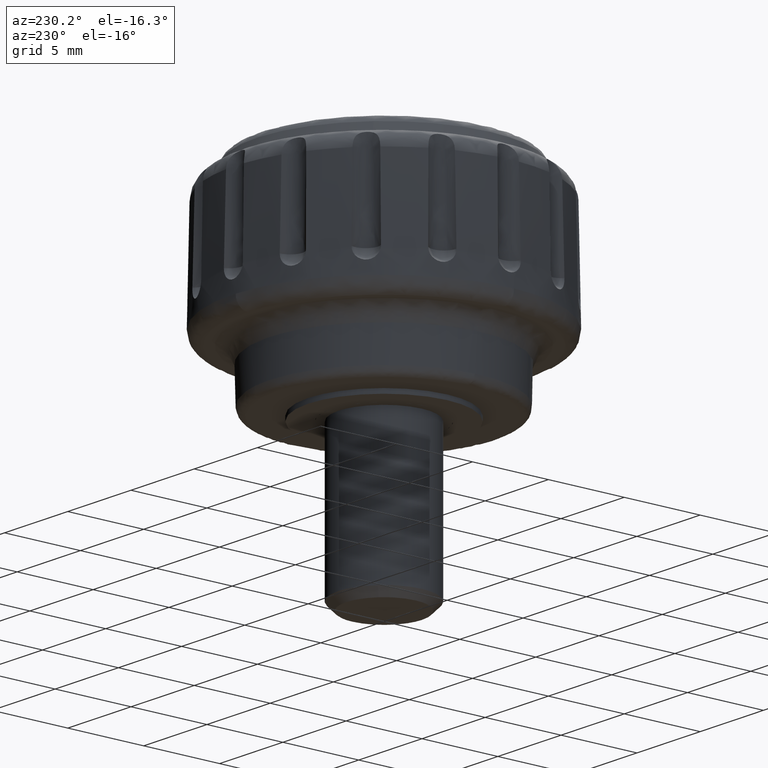
[diagram: clean part render]
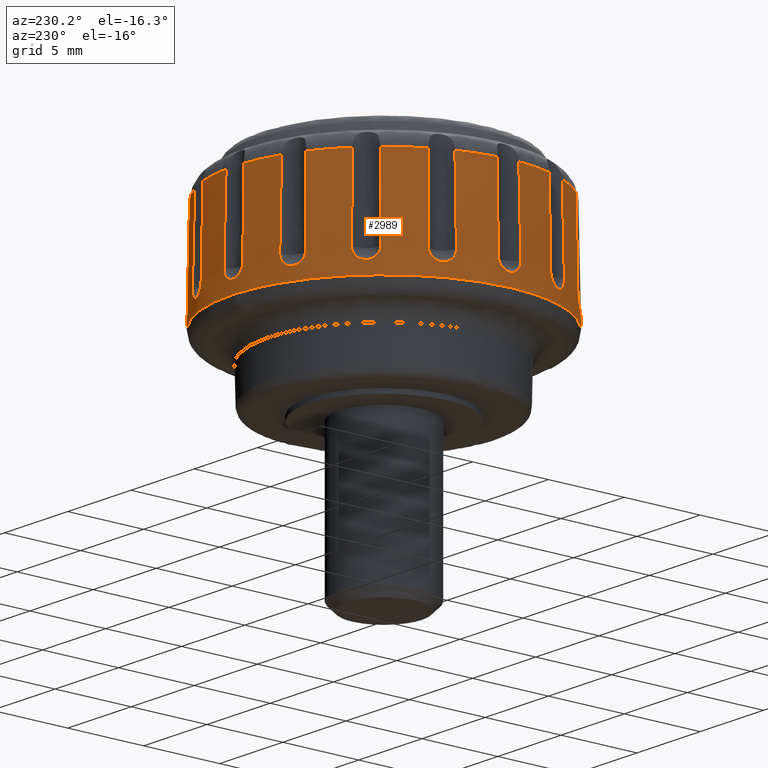
[diagram: same view with one face highlighted and labeled with its STEP entity id]
A machine part, auxiliary view. The second image highlights one B-rep face of the part: STEP entity #2989.
In plain terms, the highlighted face is a freeform B-spline surface patch.
Its self-contained STEP definition (entity closure, byte-faithful):
#1980=CARTESIAN_POINT('',(2.373256984179588,-9.551753407593877,11.794500477911381));
#1981=CARTESIAN_POINT('',(2.099889905365069,-9.619675002860934,11.794500477911381));
#1982=CARTESIAN_POINT('',(1.823085687000226,-9.671850931972292,11.794500477911379));
#1983=CARTESIAN_POINT('',(-7.848765244972066,-11.494936618972519,11.794500477911383));
#1984=CARTESIAN_POINT('',(-9.671850931972292,-1.823085687000226,11.794500477911379));
#1985=CARTESIAN_POINT('',(-11.494936618972519,7.848765244972066,11.794500477911383));
#1986=CARTESIAN_POINT('',(-1.823085687000226,9.671850931972292,11.794500477911379));
#1987=CARTESIAN_POINT('',(7.848765244972066,11.494936618972519,11.794500477911383));
#1988=CARTESIAN_POINT('',(9.671850931972292,1.823085687000226,11.794500477911379));
#1989=CARTESIAN_POINT('',(2.408181211730279,-9.692314506429204,4.641741180561333));
#1990=CARTESIAN_POINT('',(2.130791334656226,-9.761235618084299,4.641741180561333));
#1991=CARTESIAN_POINT('',(1.849913737987387,-9.814179354488800,4.641741180561332));
#1992=CARTESIAN_POINT('',(-7.964265616501413,-11.664093092476188,4.641741180561332));
#1993=CARTESIAN_POINT('',(-9.814179354488800,-1.849913737987387,4.641741180561332));
#1994=CARTESIAN_POINT('',(-11.664093092476188,7.964265616501413,4.641741180561332));
#1995=CARTESIAN_POINT('',(-1.849913737987387,9.814179354488800,4.641741180561332));
#1996=CARTESIAN_POINT('',(7.964265616501413,11.664093092476188,4.641741180561332));
#1997=CARTESIAN_POINT('',(9.814179354488800,1.849913737987387,4.641741180561332));
#2005=(BOUNDED_SURFACE()B_SPLINE_SURFACE(2,1,((#1980,#1989),(#1981,#1990),(#1982,#1991),(#1983,#1992),(#1984,#1993),(#1985,#1994),(#1986,#1995),(#1987,#1996),(#1988,#1997)),.UNSPECIFIED.,.F.,.F.,.U.)B_SPLINE_SURFACE_WITH_KNOTS((3,2,2,2,3),(2,2),(0.0,0.661880561090440,17.208894588351420,33.755908615612398,50.302922642873369),(0.0,7.154225512940127),.UNSPECIFIED.)GEOMETRIC_REPRESENTATION_ITEM()RATIONAL_B_SPLINE_SURFACE(((0.977505800795127,0.977505800795127),(0.988284271247462,0.988284271247462),(1.0,1.0),(0.707106781186548,0.707106781186548),(1.0,1.0),(0.707106781186548,0.707106781186548),(1.0,1.0),(0.707106781186548,0.707106781186548),(1.0,1.0)))REPRESENTATION_ITEM('')SURFACE());
#2006=CARTESIAN_POINT('',(2.407329404273356,-9.688886198825657,4.816199131637938));
#2007=VERTEX_POINT('',#2006);
#2008=CARTESIAN_POINT('',(0.125439446481018,-9.982685777342327,4.816198739411250));
#2009=VERTEX_POINT('',#2008);
#2010=CARTESIAN_POINT('',(2.407329404273356,-9.688886198825657,4.816199131637938));
#2011=CARTESIAN_POINT('',(1.661406666735525,-9.874315520093324,4.816199003298736));
#2012=CARTESIAN_POINT('',(0.894006557192352,-9.973132956647341,4.816198871392819));
#2013=CARTESIAN_POINT('',(0.125439446481018,-9.982685777342327,4.816198739411250));
#2014=B_SPLINE_CURVE_WITH_KNOTS('',3,(#2010,#2011,#2012,#2013),.UNSPECIFIED.,.F.,.U.,(4,4),(1.763110E-010,2.305849077910202),.UNSPECIFIED.);
#2015=EDGE_CURVE('',#2007,#2009,#2014,.T.);
#2016=ORIENTED_EDGE('',*,*,#2015,.F.);
#2017=CARTESIAN_POINT('',(2.374088011354312,-9.555098104094121,11.624298344610949));
#2018=VERTEX_POINT('',#2017);
#2019=CARTESIAN_POINT('',(2.374088011354312,-9.555098104094121,11.624298344610949));
#2020=CARTESIAN_POINT('',(2.407329404273356,-9.688886198825657,4.816199131637938));
#2021=QUASI_UNIFORM_CURVE('',1,(#2019,#2020),.UNSPECIFIED.,.F.,.U.);
#2022=EDGE_CURVE('',#2018,#2007,#2021,.T.);
#2023=ORIENTED_EDGE('',*,*,#2022,.F.);
#2024=CARTESIAN_POINT('',(0.704199067433814,-9.820402103625751,11.624297996118401));
#2025=VERTEX_POINT('',#2024);
#2026=CARTESIAN_POINT('',(2.374088011354312,-9.555098104094121,11.624298344610949));
#2027=CARTESIAN_POINT('',(1.826437239758782,-9.691191733520046,11.624298229594309));
#2028=CARTESIAN_POINT('',(1.267065112990191,-9.780077278123443,11.624298112857581));
#2029=CARTESIAN_POINT('',(0.704199067433814,-9.820402103625751,11.624297996118401));
#2030=B_SPLINE_CURVE_WITH_KNOTS('',3,(#2026,#2027,#2028,#2029),.UNSPECIFIED.,.F.,.U.,(4,4),(8.864398E-011,1.692919488753843),.UNSPECIFIED.);
#2031=EDGE_CURVE('',#2018,#2025,#2030,.T.);
#2032=ORIENTED_EDGE('',*,*,#2031,.T.);
#2033=CARTESIAN_POINT('',(0.750531941851973,-9.923061094134269,6.399994000000130));
#2034=VERTEX_POINT('',#2033);
#2035=CARTESIAN_POINT('',(0.750531941851973,-9.923061094134269,6.399994000000130));
#2036=CARTESIAN_POINT('',(0.704199067433814,-9.820402103625751,11.624297996118401));
#2037=QUASI_UNIFORM_CURVE('',1,(#2035,#2036),.UNSPECIFIED.,.F.,.U.);
#2038=EDGE_CURVE('',#2034,#2025,#2037,.T.);
#2039=ORIENTED_EDGE('',*,*,#2038,.F.);
#2040=CARTESIAN_POINT('',(-0.750531941851977,-9.923061094134269,6.399994000000111));
#2041=VERTEX_POINT('',#2040);
#2042=CARTESIAN_POINT('',(-0.750531941851975,-9.923061094134274,6.399994000000111));
#2043=CARTESIAN_POINT('',(-0.750893005139186,-9.924039569107066,6.350464187155506));
#2044=CARTESIAN_POINT('',(-0.746380247962433,-9.925406288761224,6.300137076394401));
#2045=CARTESIAN_POINT('',(-0.727969335153720,-9.928752772783987,6.202656078881438));
#2046=CARTESIAN_POINT('',(-0.714171973205257,-9.930730978695346,6.155207373734661));
#2047=CARTESIAN_POINT('',(-0.686510688892547,-9.934073446908407,6.085990254707650));
#2048=CARTESIAN_POINT('',(-0.676052288637023,-9.935257058869562,6.063125774468117));
#2049=CARTESIAN_POINT('',(-0.653122900156029,-9.937688345489958,6.018891842076951));
#2050=CARTESIAN_POINT('',(-0.640652380542661,-9.938937010206262,5.997481490237998));
#2051=CARTESIAN_POINT('',(-0.600286054802579,-9.942745120267826,5.935324032145833));
#2052=CARTESIAN_POINT('',(-0.569464941454370,-9.945367673978698,5.896629950310917));
#2053=CARTESIAN_POINT('',(-0.499638828529667,-9.950572849838045,5.824971765445691));
#2054=CARTESIAN_POINT('',(-0.461581185260973,-9.953080643261529,5.793023403231104));
#2055=CARTESIAN_POINT('',(-0.400433364001775,-9.956513622647625,5.751169633211701));
#2056=CARTESIAN_POINT('',(-0.379342389099678,-9.957605123210179,5.738210086921242));
#2057=CARTESIAN_POINT('',(-0.335709225770618,-9.959655644315532,5.714320733999896));
#2058=CARTESIAN_POINT('',(-0.313048632109806,-9.960618388603958,5.703350525472324));
#2059=CARTESIAN_POINT('',(-0.244255085841755,-9.963212046681667,5.674219416174546));
#2060=CARTESIAN_POINT('',(-0.197022589761299,-9.964567211775915,5.659583497571507));
#2061=CARTESIAN_POINT('',(-0.099842942263005,-9.966415695278775,5.639780862396209));
#2062=CARTESIAN_POINT('',(-0.049499739407047,-9.966900365674720,5.634706455735643));
#2063=CARTESIAN_POINT('',(0.049622077540891,-9.966899592143873,5.634714614161480));
#2064=CARTESIAN_POINT('',(0.098876908430935,-9.966430161631333,5.639627196032324));
#2065=CARTESIAN_POINT('',(0.172290023689605,-9.965039575302052,5.654522467296224));
#2066=CARTESIAN_POINT('',(0.196646833368537,-9.964460525858341,5.660762431298145));
#2067=CARTESIAN_POINT('',(0.244107029538939,-9.963112552715856,5.675488516089951));
#2068=CARTESIAN_POINT('',(0.290595530089057,-9.961570028351224,5.692510750013240));
#2069=CARTESIAN_POINT('',(0.335173252072261,-9.959679130946910,5.714051232834595));
#2070=CARTESIAN_POINT('',(0.378783686156026,-9.957633038244621,5.737880841484807));
#2071=CARTESIAN_POINT('',(0.400219056210585,-9.956525578161861,5.751024162211153));
#2072=CARTESIAN_POINT('',(0.461935192306146,-9.953060920790055,5.793263280225500));
#2073=CARTESIAN_POINT('',(0.499749274649491,-9.950563197898585,5.825115827374982));
#2074=CARTESIAN_POINT('',(0.568900359262004,-9.945411170127631,5.896020037971130));
#2075=CARTESIAN_POINT('',(0.600415202354291,-9.942734207406989,5.935484058949172));
#2076=CARTESIAN_POINT('',(0.654333036513364,-9.937645114625889,6.018586530354966));
#2077=CARTESIAN_POINT('',(0.677085728087913,-9.935210726446302,6.062471596342236));
#2078=CARTESIAN_POINT('',(0.704846613647304,-9.931858601026075,6.131840035817984));
#2079=CARTESIAN_POINT('',(0.713037333858680,-9.930789166999265,6.155625104535414));
#2080=CARTESIAN_POINT('',(0.726920838070620,-9.928812970622062,6.203381406306209));
#2081=CARTESIAN_POINT('',(0.732667801176264,-9.927900082185932,6.227469207731982));
#2082=CARTESIAN_POINT('',(0.746395926020714,-9.925400744031217,6.300349600802884));
#2083=CARTESIAN_POINT('',(0.750896833934070,-9.924049945071843,6.349938962078083));
#2084=CARTESIAN_POINT('',(0.750531941851993,-9.923061094134274,6.399994000000134));
#2085=B_SPLINE_CURVE_WITH_KNOTS('',3,(#2042,#2043,#2044,#2045,#2046,#2047,#2048,#2049,#2050,#2051,#2052,#2053,#2054,#2055,#2056,#2057,#2058,#2059,#2060,#2061,#2062,#2063,#2064,#2065,#2066,#2067,#2068,#2069,#2070,#2071,#2072,#2073,#2074,#2075,#2076,#2077,#2078,#2079,#2080,#2081,#2082,#2083,#2084),.UNSPECIFIED.,.F.,.U.,(4,2,2,2,2,2,2,2,2,2,2,2,2,1,2,2,2,2,2,2,2,4),(0.0,0.062499999999999,0.124999999999998,0.156249999999998,0.187499999999999,0.249999999999999,0.312499999999999,0.343749999999999,0.374999999999999,0.437499999999999,0.499999999999999,0.562499999999999,0.593749999999999,0.624999999999999,0.656249999999999,0.687499999999999,0.750000000000000,0.812500000000000,0.875000000000000,0.906250000000000,0.937500000000001,1.0),.UNSPECIFIED.);
#2086=EDGE_CURVE('',#2041,#2034,#2085,.T.);
#2087=ORIENTED_EDGE('',*,*,#2086,.F.);
#2088=CARTESIAN_POINT('',(-0.704199067433811,-9.820402103625751,11.624297996118401));
#2089=VERTEX_POINT('',#2088);
#2090=CARTESIAN_POINT('',(-0.704199067433811,-9.820402103625751,11.624297996118401));
#2091=CARTESIAN_POINT('',(-0.750531941851977,-9.923061094134269,6.399994000000111));
#2092=QUASI_UNIFORM_CURVE('',1,(#2090,#2091),.UNSPECIFIED.,.F.,.U.);
#2093=EDGE_CURVE('',#2089,#2041,#2092,.T.);
#2094=ORIENTED_EDGE('',*,*,#2093,.F.);
#2095=CARTESIAN_POINT('',(-3.107510079005215,-9.342353820764480,11.624297996118401));
#2096=VERTEX_POINT('',#2095);
#2097=CARTESIAN_POINT('',(-0.704199067433811,-9.820402103625751,11.624297996118401));
#2098=CARTESIAN_POINT('',(-1.023271248105946,-9.797525451015446,11.624297996118370));
#2099=CARTESIAN_POINT('',(-1.837238387364645,-9.699110878673421,11.624297996118450));
#2100=CARTESIAN_POINT('',(-2.633996774450717,-9.499892108365620,11.624297996118379));
#2101=CARTESIAN_POINT('',(-3.107510079005215,-9.342353820764480,11.624297996118401));
#2102=B_SPLINE_CURVE_WITH_KNOTS('',3,(#2097,#2098,#2099,#2100,#2101),.UNSPECIFIED.,.F.,.U.,(4,1,4),(2.260570E-010,0.959674595087723,2.456764972439022),.UNSPECIFIED.);
#2103=EDGE_CURVE('',#2089,#2096,#2102,.T.);
#2104=ORIENTED_EDGE('',*,*,#2103,.T.);
#2105=CARTESIAN_POINT('',(-3.103989979498795,-9.454929184337260,6.399994000000130));
#2106=VERTEX_POINT('',#2105);
#2107=CARTESIAN_POINT('',(-3.103989979498795,-9.454929184337260,6.399994000000130));
#2108=CARTESIAN_POINT('',(-3.107510079005215,-9.342353820764480,11.624297996118401));
#2109=QUASI_UNIFORM_CURVE('',1,(#2107,#2108),.UNSPECIFIED.,.F.,.U.);
#2110=EDGE_CURVE('',#2106,#2096,#2109,.T.);
#2111=ORIENTED_EDGE('',*,*,#2110,.F.);
#2112=CARTESIAN_POINT('',(-4.490792178644780,-8.880496905122159,6.399994000000119));
#2113=VERTEX_POINT('',#2112);
#2114=CARTESIAN_POINT('',(-4.490792178644780,-8.880496905122159,6.399994000000119));
#2115=CARTESIAN_POINT('',(-4.491504969443217,-8.881267879851727,6.350130806329656));
#2116=CARTESIAN_POINT('',(-4.487923959817104,-8.884200562070351,6.300859588249299));
#2117=CARTESIAN_POINT('',(-4.472303977734538,-8.894281014321628,6.203480066521323));
#2118=CARTESIAN_POINT('',(-4.460053943054768,-8.901543676046016,6.154951490962036));
#2119=CARTESIAN_POINT('',(-4.427758137475995,-8.919732652219707,6.062919199556133));
#2120=CARTESIAN_POINT('',(-4.407729355976033,-8.930660162314281,6.019028312063128));
#2121=CARTESIAN_POINT('',(-4.371707269653020,-8.949728468179021,5.956431228551502));
#2122=CARTESIAN_POINT('',(-4.358622349739366,-8.956571172517430,5.936019887672410));
#2123=CARTESIAN_POINT('',(-4.330927064150653,-8.970870372862750,5.897129574759848));
#2124=CARTESIAN_POINT('',(-4.316282240683866,-8.978345952730685,5.878568542024724));
#2125=CARTESIAN_POINT('',(-4.269983903714065,-9.001696382663628,5.825487345457101));
#2126=CARTESIAN_POINT('',(-4.235985382187828,-9.018488812668592,5.793538530082611));
#2127=CARTESIAN_POINT('',(-4.161339892675651,-9.054436556684442,5.736892135628012));
#2128=CARTESIAN_POINT('',(-4.121961284174100,-9.072978794846474,5.713156616871855));
#2129=CARTESIAN_POINT('',(-4.059864400970996,-9.101491406381427,5.684186252852565));
#2130=CARTESIAN_POINT('',(-4.038657072716305,-9.111113548988405,5.675643229450041));
#2131=CARTESIAN_POINT('',(-3.995191411780072,-9.130583768445854,5.660843437709040));
#2132=CARTESIAN_POINT('',(-3.972872132178416,-9.140456976522257,5.654588321599382));
#2133=CARTESIAN_POINT('',(-3.905822200670393,-9.169733325037941,5.639709769344132));
#2134=CARTESIAN_POINT('',(-3.860530897285792,-9.189006996841345,5.634745085852624));
#2135=CARTESIAN_POINT('',(-3.791698556709893,-9.217523577540190,5.634693522687189));
#2136=CARTESIAN_POINT('',(-3.768488526332700,-9.227010112312019,5.635932220730967));
#2137=CARTESIAN_POINT('',(-3.722326677751493,-9.245619920339930,5.640931268867245));
#2138=CARTESIAN_POINT('',(-3.699490967006649,-9.254697894992814,5.644664576602922));
#2139=CARTESIAN_POINT('',(-3.631701794565812,-9.281282572195838,5.659455110059619));
#2140=CARTESIAN_POINT('',(-3.587458286329541,-9.298143892063807,5.674067749559086));
#2141=CARTESIAN_POINT('',(-3.500970153785850,-9.330209121720644,5.713074229182643));
#2142=CARTESIAN_POINT('',(-3.459818138486668,-9.345005739604474,5.737021568458338));
#2143=CARTESIAN_POINT('',(-3.401942814930812,-9.365260940908314,5.778885101711847));
#2144=CARTESIAN_POINT('',(-3.383251435446596,-9.371704322808805,5.793858443414422));
#2145=CARTESIAN_POINT('',(-3.347098883781863,-9.383988580161578,5.825877864842361));
#2146=CARTESIAN_POINT('',(-3.329575509598489,-9.389849180295254,5.843005514270533));
#2147=CARTESIAN_POINT('',(-3.279968014337376,-9.406194360662143,5.896463251065668));
#2148=CARTESIAN_POINT('',(-3.250482672980452,-9.415571355028474,5.935095011725159));
#2149=CARTESIAN_POINT('',(-3.198628143939035,-9.431535426942986,6.018245142795576));
#2150=CARTESIAN_POINT('',(-3.176227094947655,-9.438123844900053,6.063096429880022));
#2151=CARTESIAN_POINT('',(-3.140578965421755,-9.448083609832523,6.155050418803310));
#2152=CARTESIAN_POINT('',(-3.127021529002512,-9.451552919774969,6.202545894213222));
#2153=CARTESIAN_POINT('',(-3.113236968568677,-9.454530584125363,6.276112672392812));
#2154=CARTESIAN_POINT('',(-3.109760289876152,-9.455142987979968,6.301015317417393));
#2155=CARTESIAN_POINT('',(-3.105161486246878,-9.455599117413318,6.350524119286890));
#2156=CARTESIAN_POINT('',(-3.104010383073832,-9.455449501885214,6.375265470868566));
#2157=CARTESIAN_POINT('',(-3.103989979498793,-9.454929184337260,6.399994000000131));
#2158=B_SPLINE_CURVE_WITH_KNOTS('',3,(#2114,#2115,#2116,#2117,#2118,#2119,#2120,#2121,#2122,#2123,#2124,#2125,#2126,#2127,#2128,#2129,#2130,#2131,#2132,#2133,#2134,#2135,#2136,#2137,#2138,#2139,#2140,#2141,#2142,#2143,#2144,#2145,#2146,#2147,#2148,#2149,#2150,#2151,#2152,#2153,#2154,#2155,#2156,#2157),.UNSPECIFIED.,.F.,.U.,(4,2,2,2,2,2,2,2,2,2,2,2,2,2,2,2,2,2,2,2,2,4),(0.0,0.062500000000001,0.125000000000002,0.187500000000003,0.218750000000004,0.250000000000005,0.312500000000006,0.375000000000007,0.406250000000007,0.437500000000007,0.500000000000007,0.531250000000006,0.562500000000005,0.625000000000004,0.687500000000003,0.718750000000002,0.750000000000002,0.812500000000001,0.875000000000000,0.937499999999999,0.968750000000000,1.0),.UNSPECIFIED.);
#2159=EDGE_CURVE('',#2113,#2106,#2158,.T.);
#2160=ORIENTED_EDGE('',*,*,#2159,.F.);
#2161=CARTESIAN_POINT('',(-4.408700289436485,-8.803383188376751,11.624297996118401));
#2162=VERTEX_POINT('',#2161);
#2163=CARTESIAN_POINT('',(-4.408700289436485,-8.803383188376751,11.624297996118401));
#2164=CARTESIAN_POINT('',(-4.490792178644780,-8.880496905122159,6.399994000000119));
#2165=QUASI_UNIFORM_CURVE('',1,(#2163,#2164),.UNSPECIFIED.,.F.,.U.);
#2166=EDGE_CURVE('',#2162,#2113,#2165,.T.);
#2167=ORIENTED_EDGE('',*,*,#2166,.F.);
#2168=CARTESIAN_POINT('',(-6.446128985564711,-7.442016857340100,11.624297996118401));
#2169=VERTEX_POINT('',#2168);
#2170=CARTESIAN_POINT('',(-4.408700289436485,-8.803383188376751,11.624297996118401));
#2171=CARTESIAN_POINT('',(-4.683288488134678,-8.665873710401264,11.624297996118401));
#2172=CARTESIAN_POINT('',(-5.398351306423018,-8.264889985186567,11.624297996118401));
#2173=CARTESIAN_POINT('',(-6.059278062185761,-7.777151040463544,11.624297996118370));
#2174=CARTESIAN_POINT('',(-6.446128985564711,-7.442016857340100,11.624297996118401));
#2175=B_SPLINE_CURVE_WITH_KNOTS('',3,(#2170,#2171,#2172,#2173,#2174),.UNSPECIFIED.,.F.,.U.,(4,1,4),(2.263572E-010,0.921286868437252,2.456764972439015),.UNSPECIFIED.);
#2176=EDGE_CURVE('',#2162,#2169,#2175,.T.);
#2177=ORIENTED_EDGE('',*,*,#2176,.T.);
#2178=CARTESIAN_POINT('',(-6.485957564210110,-7.547370015371381,6.399994000000130));
#2179=VERTEX_POINT('',#2178);
#2180=CARTESIAN_POINT('',(-6.485957564210110,-7.547370015371381,6.399994000000130));
#2181=CARTESIAN_POINT('',(-6.446128985564711,-7.442016857340100,11.624297996118401));
#2182=QUASI_UNIFORM_CURVE('',1,(#2180,#2181),.UNSPECIFIED.,.F.,.U.);
#2183=EDGE_CURVE('',#2179,#2169,#2182,.T.);
#2184=ORIENTED_EDGE('',*,*,#2183,.F.);
#2185=CARTESIAN_POINT('',(-7.547370015371390,-6.485957564210100,6.399994000000119));
#2186=VERTEX_POINT('',#2185);
#2187=CARTESIAN_POINT('',(-7.547370015371386,-6.485957564210106,6.399994000000119));
#2188=CARTESIAN_POINT('',(-7.548328445328832,-6.486399317815216,6.349876783518328));
#2189=CARTESIAN_POINT('',(-7.546102944687203,-6.490531297389592,6.300400586827006));
#2190=CARTESIAN_POINT('',(-7.538167246604584,-6.502000747979865,6.227526168672768));
#2191=CARTESIAN_POINT('',(-7.534750128258784,-6.506708804979958,6.203435842984991));
#2192=CARTESIAN_POINT('',(-7.526330160936462,-6.517924029277514,6.155665730897808));
#2193=CARTESIAN_POINT('',(-7.521294066550098,-6.524472786459863,6.131875573414221));
#2194=CARTESIAN_POINT('',(-7.504045965520131,-6.546458862174635,6.062539348010709));
#2195=CARTESIAN_POINT('',(-7.489689269705747,-6.564256277109277,6.018673769142803));
#2196=CARTESIAN_POINT('',(-7.455189592481610,-6.605948819073809,5.935605879104808));
#2197=CARTESIAN_POINT('',(-7.434800629650636,-6.630124121445183,5.896128468842560));
#2198=CARTESIAN_POINT('',(-7.389565339348139,-6.682644448207081,5.825223930320391));
#2199=CARTESIAN_POINT('',(-7.364619216386370,-6.711119855576688,5.793395264827480));
#2200=CARTESIAN_POINT('',(-7.323511451079328,-6.757120889992891,5.751203885263210));
#2201=CARTESIAN_POINT('',(-7.309127806752136,-6.773073296813016,5.738035747969657));
#2202=CARTESIAN_POINT('',(-7.279711142227097,-6.805388379643960,5.714162923661784));
#2203=CARTESIAN_POINT('',(-7.264616012897709,-6.821821700482823,5.703382554391450));
#2204=CARTESIAN_POINT('',(-7.218167514550807,-6.871912960822432,5.674448661117638));
#2205=CARTESIAN_POINT('',(-7.185537305801349,-6.906482389208631,5.659631579871640));
#2206=CARTESIAN_POINT('',(-7.117456723186261,-6.977199794188243,5.639657985836881));
#2207=CARTESIAN_POINT('',(-7.082933289993228,-7.012388476532443,5.634735581876672));
#2208=CARTESIAN_POINT('',(-7.030424520793631,-7.064902264945146,5.634698149326880));
#2209=CARTESIAN_POINT('',(-7.012800585112220,-7.082362143099187,5.635919215769393));
#2210=CARTESIAN_POINT('',(-6.977305769949386,-7.117191860394458,5.640898465959916));
#2211=CARTESIAN_POINT('',(-6.959487846148397,-7.134507598738668,5.644665683561748));
#2212=CARTESIAN_POINT('',(-6.906868939086647,-7.185166466098464,5.659512263306141));
#2213=CARTESIAN_POINT('',(-6.872505123088630,-7.217614013395807,5.674146292456719));
#2214=CARTESIAN_POINT('',(-6.822096124602441,-7.264363709636134,5.703204536373693));
#2215=CARTESIAN_POINT('',(-6.805396523367491,-7.279703846661858,5.714155726216640));
#2216=CARTESIAN_POINT('',(-6.773023201274032,-7.309173291219820,5.738073938925067));
#2217=CARTESIAN_POINT('',(-6.757312632243477,-7.323338529101664,5.751046037506145));
#2218=CARTESIAN_POINT('',(-6.711596175308002,-7.364196672038059,5.792922865862053));
#2219=CARTESIAN_POINT('',(-6.682960308801945,-7.389293128592700,5.824800066395859));
#2220=CARTESIAN_POINT('',(-6.629838112644249,-7.435047129229998,5.896512033091637));
#2221=CARTESIAN_POINT('',(-6.606167167950428,-7.455006198994851,5.935232089594311));
#2222=CARTESIAN_POINT('',(-6.574907593554134,-7.480876870988706,5.997422040507130));
#2223=CARTESIAN_POINT('',(-6.565200607556298,-7.488817018359741,6.018842159211758));
#2224=CARTESIAN_POINT('',(-6.547258632130839,-7.503319093766737,6.063092653683332));
#2225=CARTESIAN_POINT('',(-6.539027963198572,-7.509876254915647,6.085950884999010));
#2226=CARTESIAN_POINT('',(-6.517103059203038,-7.527074131688232,6.155163170718025));
#2227=CARTESIAN_POINT('',(-6.505940956825915,-7.535437317077857,6.202625814843626));
#2228=CARTESIAN_POINT('',(-6.494394616949089,-7.543431747241592,6.275787306607221));
#2229=CARTESIAN_POINT('',(-6.491409279809409,-7.545336495041253,6.300620413279351));
#2230=CARTESIAN_POINT('',(-6.487299204542930,-7.547541103705855,6.350412320390880));
#2231=CARTESIAN_POINT('',(-6.486175778079570,-7.547843452842423,6.375237503145963));
#2232=CARTESIAN_POINT('',(-6.485957564210106,-7.547370015371386,6.399994000000130));
#2233=B_SPLINE_CURVE_WITH_KNOTS('',3,(#2187,#2188,#2189,#2190,#2191,#2192,#2193,#2194,#2195,#2196,#2197,#2198,#2199,#2200,#2201,#2202,#2203,#2204,#2205,#2206,#2207,#2208,#2209,#2210,#2211,#2212,#2213,#2214,#2215,#2216,#2217,#2218,#2219,#2220,#2221,#2222,#2223,#2224,#2225,#2226,#2227,#2228,#2229,#2230,#2231,#2232),.UNSPECIFIED.,.F.,.U.,(4,2,2,2,2,2,2,2,2,2,2,2,2,2,2,2,2,2,2,2,2,2,4),(0.0,0.062499999999998,0.093749999999998,0.124999999999997,0.187499999999996,0.249999999999996,0.312499999999995,0.343749999999995,0.374999999999995,0.437499999999994,0.499999999999994,0.531249999999994,0.562499999999995,0.624999999999995,0.656249999999995,0.687499999999995,0.749999999999997,0.812499999999998,0.843749999999999,0.874999999999999,0.937499999999999,0.968750000000000,1.0),.UNSPECIFIED.);
#2234=EDGE_CURVE('',#2186,#2179,#2233,.T.);
#2235=ORIENTED_EDGE('',*,*,#2234,.F.);
#2236=CARTESIAN_POINT('',(-7.442016857340100,-6.446128985564711,11.624297996118401));
#2237=VERTEX_POINT('',#2236);
#2238=CARTESIAN_POINT('',(-7.442016857340100,-6.446128985564711,11.624297996118401));
#2239=CARTESIAN_POINT('',(-7.547370015371390,-6.485957564210100,6.399994000000119));
#2240=QUASI_UNIFORM_CURVE('',1,(#2238,#2239),.UNSPECIFIED.,.F.,.U.);
#2241=EDGE_CURVE('',#2237,#2186,#2240,.T.);
#2242=ORIENTED_EDGE('',*,*,#2241,.F.);
#2243=CARTESIAN_POINT('',(-8.803383188376751,-4.408700289436485,11.624297996118401));
#2244=VERTEX_POINT('',#2243);
#2245=CARTESIAN_POINT('',(-7.442016857340100,-6.446128985564711,11.624297996118401));
#2246=CARTESIAN_POINT('',(-7.643080398786204,-6.214006246491905,11.624297996118401));
#2247=CARTESIAN_POINT('',(-8.150263983743889,-5.569903915700089,11.624297996118409));
#2248=CARTESIAN_POINT('',(-8.574228826391074,-4.866364659280734,11.624297996118420));
#2249=CARTESIAN_POINT('',(-8.803383188376751,-4.408700289436485,11.624297996118401));
#2250=B_SPLINE_CURVE_WITH_KNOTS('',3,(#2245,#2246,#2247,#2248,#2249),.UNSPECIFIED.,.F.,.U.,(4,1,4),(2.263665E-010,0.921286868437244,2.456764972439017),.UNSPECIFIED.);
#2251=EDGE_CURVE('',#2237,#2244,#2250,.T.);
#2252=ORIENTED_EDGE('',*,*,#2251,.T.);
#2253=CARTESIAN_POINT('',(-8.880496905122159,-4.490792178644774,6.399994000000130));
#2254=VERTEX_POINT('',#2253);
#2255=CARTESIAN_POINT('',(-8.880496905122159,-4.490792178644774,6.399994000000130));
#2256=CARTESIAN_POINT('',(-8.803383188376751,-4.408700289436485,11.624297996118401));
#2257=QUASI_UNIFORM_CURVE('',1,(#2255,#2256),.UNSPECIFIED.,.F.,.U.);
#2258=EDGE_CURVE('',#2254,#2244,#2257,.T.);
#2259=ORIENTED_EDGE('',*,*,#2258,.F.);
#2260=CARTESIAN_POINT('',(-9.454929184337260,-3.103989979498790,6.399994000000119));
#2261=VERTEX_POINT('',#2260);
#2262=CARTESIAN_POINT('',(-9.454929184337260,-3.103989979498790,6.399994000000119));
#2263=CARTESIAN_POINT('',(-9.455976161089085,-3.104031035325038,6.350235549277244));
#2264=CARTESIAN_POINT('',(-9.455523345041776,-3.108617932138485,6.300993423905820));
#2265=CARTESIAN_POINT('',(-9.451606952995995,-3.126794302252534,6.203532294302642));
#2266=CARTESIAN_POINT('',(-9.448080741848946,-3.140589390616003,6.155021783165162));
#2267=CARTESIAN_POINT('',(-9.438124651104385,-3.176224049269268,6.063106030493000));
#2268=CARTESIAN_POINT('',(-9.431695549875197,-3.198096300515334,6.019201850450495));
#2269=CARTESIAN_POINT('',(-9.419692898224582,-3.237100781442226,5.956502646890251));
#2270=CARTESIAN_POINT('',(-9.415282456073047,-3.251180735227902,5.936106600699194));
#2271=CARTESIAN_POINT('',(-9.405831619774727,-3.280809614927734,5.897286276117374));
#2272=CARTESIAN_POINT('',(-9.400770902451253,-3.296425956693506,5.878742689302976));
#2273=CARTESIAN_POINT('',(-9.384560011372340,-3.345632475879855,5.825673086079193));
#2274=CARTESIAN_POINT('',(-9.372329555107875,-3.381735603583129,5.793553716427621));
#2275=CARTESIAN_POINT('',(-9.345043463269652,-3.459720233383731,5.737041125785829));
#2276=CARTESIAN_POINT('',(-9.330333901499037,-3.500616802863984,5.713306733274105));
#2277=CARTESIAN_POINT('',(-9.306587330042424,-3.564692309837965,5.684299840353119));
#2278=CARTESIAN_POINT('',(-9.298389888745463,-3.586509453268882,5.675738067740955));
#2279=CARTESIAN_POINT('',(-9.281396968732457,-3.631083142684295,5.660897186961644));
#2280=CARTESIAN_POINT('',(-9.272617518024068,-3.653793012951878,5.654651561576398));
#2281=CARTESIAN_POINT('',(-9.245959141670888,-3.721782289309311,5.639768614272271));
#2282=CARTESIAN_POINT('',(-9.227572357334610,-3.767419859271783,5.634769390314334));
#2283=CARTESIAN_POINT('',(-9.199036663485604,-3.836332802191207,5.634681870907951));
#2284=CARTESIAN_POINT('',(-9.189308059083185,-3.859513233076251,5.635916508151632));
#2285=CARTESIAN_POINT('',(-9.169870635591851,-3.905213560652588,5.640882839833942));
#2286=CARTESIAN_POINT('',(-9.160157562545653,-3.927748303027738,5.644596228281045));
#2287=CARTESIAN_POINT('',(-9.131045728377043,-3.994435427238531,5.659332034153268));
#2288=CARTESIAN_POINT('',(-9.111671552366664,-4.037678742698939,5.673914225809688));
#2289=CARTESIAN_POINT('',(-9.073107905863674,-4.121694375604555,5.712955356706272));
#2290=CARTESIAN_POINT('',(-9.054570937043520,-4.161048928827055,5.736755450291989));
#2291=CARTESIAN_POINT('',(-9.027958483089877,-4.216327390424714,5.778579855854190));
#2292=CARTESIAN_POINT('',(-9.019287835003850,-4.234123872092525,5.793550155269448));
#2293=CARTESIAN_POINT('',(-9.002379280848315,-4.268441927729376,5.825592430284933));
#2294=CARTESIAN_POINT('',(-8.994139164226004,-4.284965289573168,5.842691254231506));
#2295=CARTESIAN_POINT('',(-8.970647603809393,-4.331551691497871,5.896020557773630));
#2296=CARTESIAN_POINT('',(-8.956420314308344,-4.359054559375179,5.934606786630522));
#2297=CARTESIAN_POINT('',(-8.937350616160620,-4.395095696330330,5.996996099077451));
#2298=CARTESIAN_POINT('',(-8.931347034935477,-4.406285361681958,6.018666791625035));
#2299=CARTESIAN_POINT('',(-8.920301793158645,-4.426585414358663,6.062971084309521));
#2300=CARTESIAN_POINT('',(-8.915270761596538,-4.435678472877596,6.085532642575386));
#2301=CARTESIAN_POINT('',(-8.901636189868960,-4.459893748994226,6.154409979734035));
#2302=CARTESIAN_POINT('',(-8.894478742613833,-4.471981961257208,6.201907099843918));
#2303=CARTESIAN_POINT('',(-8.884240108715886,-4.487877952032669,6.300148171918350));
#2304=CARTESIAN_POINT('',(-8.881269559396911,-4.491506522234975,6.350022180894551));
#2305=CARTESIAN_POINT('',(-8.880496905122159,-4.490792178644774,6.399994000000130));
#2306=B_SPLINE_CURVE_WITH_KNOTS('',3,(#2262,#2263,#2264,#2265,#2266,#2267,#2268,#2269,#2270,#2271,#2272,#2273,#2274,#2275,#2276,#2277,#2278,#2279,#2280,#2281,#2282,#2283,#2284,#2285,#2286,#2287,#2288,#2289,#2290,#2291,#2292,#2293,#2294,#2295,#2296,#2297,#2298,#2299,#2300,#2301,#2302,#2303,#2304,#2305),.UNSPECIFIED.,.F.,.U.,(4,2,2,2,2,2,2,2,2,2,2,2,2,2,2,2,2,2,2,2,2,4),(0.0,0.062500000000000,0.125000000000001,0.187500000000001,0.218750000000001,0.250000000000001,0.312500000000001,0.375000000000001,0.406250000000001,0.437500000000001,0.500000000000001,0.531250000000002,0.562500000000002,0.625000000000002,0.687500000000002,0.718750000000002,0.750000000000002,0.812500000000001,0.843750000000001,0.875000000000001,0.937500000000001,1.0),.UNSPECIFIED.);
#2307=EDGE_CURVE('',#2261,#2254,#2306,.T.);
#2308=ORIENTED_EDGE('',*,*,#2307,.F.);
#2309=CARTESIAN_POINT('',(-9.342353820764480,-3.107510079005215,11.624297996118401));
#2310=VERTEX_POINT('',#2309);
#2311=CARTESIAN_POINT('',(-9.342353820764480,-3.107510079005215,11.624297996118401));
#2312=CARTESIAN_POINT('',(-9.454929184337260,-3.103989979498790,6.399994000000119));
#2313=QUASI_UNIFORM_CURVE('',1,(#2311,#2312),.UNSPECIFIED.,.F.,.U.);
#2314=EDGE_CURVE('',#2310,#2261,#2313,.T.);
#2315=ORIENTED_EDGE('',*,*,#2314,.F.);
#2316=CARTESIAN_POINT('',(-9.820402103625751,-0.704199067433813,11.624297996118401));
#2317=VERTEX_POINT('',#2316);
#2318=CARTESIAN_POINT('',(-9.342353820764480,-3.107510079005215,11.624297996118401));
#2319=CARTESIAN_POINT('',(-9.443321854488074,-2.803971244129003,11.624297996118409));
#2320=CARTESIAN_POINT('',(-9.663892172319903,-2.014302341272535,11.624297996118390));
#2321=CARTESIAN_POINT('',(-9.784741494451195,-1.201955419135721,11.624297996118431));
#2322=CARTESIAN_POINT('',(-9.820402103625751,-0.704199067433813,11.624297996118401));
#2323=B_SPLINE_CURVE_WITH_KNOTS('',3,(#2318,#2319,#2320,#2321,#2322),.UNSPECIFIED.,.F.,.U.,(4,1,4),(2.260032E-010,0.959674595087624,2.456764972439018),.UNSPECIFIED.);
#2324=EDGE_CURVE('',#2310,#2317,#2323,.T.);
#2325=ORIENTED_EDGE('',*,*,#2324,.T.);
#2326=CARTESIAN_POINT('',(-9.923061094134269,-0.750531941851973,6.399994000000130));
#2327=VERTEX_POINT('',#2326);
#2328=CARTESIAN_POINT('',(-9.923061094134269,-0.750531941851973,6.399994000000130));
#2329=CARTESIAN_POINT('',(-9.820402103625751,-0.704199067433813,11.624297996118401));
#2330=QUASI_UNIFORM_CURVE('',1,(#2328,#2329),.UNSPECIFIED.,.F.,.U.);
#2331=EDGE_CURVE('',#2327,#2317,#2330,.T.);
#2332=ORIENTED_EDGE('',*,*,#2331,.F.);
#2333=CARTESIAN_POINT('',(-9.923061094134269,0.750531941851978,6.399994000000119));
#2334=VERTEX_POINT('',#2333);
#2335=CARTESIAN_POINT('',(-9.923061094134273,0.750531941851975,6.399994000000119));
#2336=CARTESIAN_POINT('',(-9.924039569107070,0.750893005139187,6.350464187155513));
#2337=CARTESIAN_POINT('',(-9.925406288761224,0.746380247962434,6.300137076394410));
#2338=CARTESIAN_POINT('',(-9.928752772783989,0.727969335153722,6.202656078881447));
#2339=CARTESIAN_POINT('',(-9.930730978695340,0.714171973205259,6.155207373734668));
#2340=CARTESIAN_POINT('',(-9.934073446908407,0.686510688892551,6.085990254707659));
#2341=CARTESIAN_POINT('',(-9.935257058869562,0.676052288637026,6.063125774468122));
#2342=CARTESIAN_POINT('',(-9.937688345489960,0.653122900156033,6.018891842076958));
#2343=CARTESIAN_POINT('',(-9.938937010206256,0.640652380542665,5.997481490238004));
#2344=CARTESIAN_POINT('',(-9.942745120267826,0.600286054802584,5.935324032145839));
#2345=CARTESIAN_POINT('',(-9.945367673978698,0.569464941454376,5.896629950310925));
#2346=CARTESIAN_POINT('',(-9.950572849838045,0.499638828529672,5.824971765445694));
#2347=CARTESIAN_POINT('',(-9.953080643261531,0.461581185260978,5.793023403231108));
#2348=CARTESIAN_POINT('',(-9.956513622647623,0.400433364001780,5.751169633211704));
#2349=CARTESIAN_POINT('',(-9.957605123210177,0.379342389099683,5.738210086921245));
#2350=CARTESIAN_POINT('',(-9.959655644315532,0.335709225770623,5.714320733999897));
#2351=CARTESIAN_POINT('',(-9.960618388603958,0.313048632109812,5.703350525472327));
#2352=CARTESIAN_POINT('',(-9.963212046681667,0.244255085841761,5.674219416174547));
#2353=CARTESIAN_POINT('',(-9.964567211775915,0.197022589761305,5.659583497571507));
#2354=CARTESIAN_POINT('',(-9.966415695278773,0.099842942263010,5.639780862396210));
#2355=CARTESIAN_POINT('',(-9.966900365674720,0.049499739407052,5.634706455735643));
#2356=CARTESIAN_POINT('',(-9.966899592143871,-0.049622077540886,5.634714614161477));
#2357=CARTESIAN_POINT('',(-9.966430161631333,-0.098876908430931,5.639627196032323));
#2358=CARTESIAN_POINT('',(-9.965039575302054,-0.172290023689601,5.654522467296220));
#2359=CARTESIAN_POINT('',(-9.964460525858343,-0.196646833368533,5.660762431298142));
#2360=CARTESIAN_POINT('',(-9.963112552715860,-0.244107029538936,5.675488516089949));
#2361=CARTESIAN_POINT('',(-9.961570028351222,-0.290595530089054,5.692510750013237));
#2362=CARTESIAN_POINT('',(-9.959679130946908,-0.335173252072258,5.714051232834592));
#2363=CARTESIAN_POINT('',(-9.957633038244623,-0.378783686156023,5.737880841484805));
#2364=CARTESIAN_POINT('',(-9.956525578161861,-0.400219056210582,5.751024162211154));
#2365=CARTESIAN_POINT('',(-9.953060920790056,-0.461935192306144,5.793263280225503));
#2366=CARTESIAN_POINT('',(-9.950563197898587,-0.499749274649489,5.825115827374981));
#2367=CARTESIAN_POINT('',(-9.945411170127629,-0.568900359262002,5.896020037971128));
#2368=CARTESIAN_POINT('',(-9.942734207406987,-0.600415202354290,5.935484058949170));
#2369=CARTESIAN_POINT('',(-9.937645114625893,-0.654333036513363,6.018586530354967));
#2370=CARTESIAN_POINT('',(-9.935210726446304,-0.677085728087913,6.062471596342235));
#2371=CARTESIAN_POINT('',(-9.931858601026073,-0.704846613647303,6.131840035817982));
#2372=CARTESIAN_POINT('',(-9.930789166999263,-0.713037333858679,6.155625104535411));
#2373=CARTESIAN_POINT('',(-9.928812970622063,-0.726920838070620,6.203381406306209));
#2374=CARTESIAN_POINT('',(-9.927900082185929,-0.732667801176263,6.227469207731978));
#2375=CARTESIAN_POINT('',(-9.925400744031217,-0.746395926020714,6.300349600802886));
#2376=CARTESIAN_POINT('',(-9.924049945071845,-0.750896833934070,6.349938962078084));
#2377=CARTESIAN_POINT('',(-9.923061094134274,-0.750531941851993,6.399994000000134));
#2378=B_SPLINE_CURVE_WITH_KNOTS('',3,(#2335,#2336,#2337,#2338,#2339,#2340,#2341,#2342,#2343,#2344,#2345,#2346,#2347,#2348,#2349,#2350,#2351,#2352,#2353,#2354,#2355,#2356,#2357,#2358,#2359,#2360,#2361,#2362,#2363,#2364,#2365,#2366,#2367,#2368,#2369,#2370,#2371,#2372,#2373,#2374,#2375,#2376,#2377),.UNSPECIFIED.,.F.,.U.,(4,2,2,2,2,2,2,2,2,2,2,2,2,1,2,2,2,2,2,2,2,4),(0.0,0.062500000000001,0.125000000000001,0.156250000000001,0.187500000000001,0.250000000000001,0.312500000000001,0.343750000000002,0.375000000000002,0.437500000000002,0.500000000000002,0.562500000000001,0.593750000000001,0.625000000000001,0.656250000000001,0.687500000000001,0.750000000000001,0.812500000000001,0.875000000000001,0.906250000000000,0.937500000000000,1.0),.UNSPECIFIED.);
#2379=EDGE_CURVE('',#2334,#2327,#2378,.T.);
#2380=ORIENTED_EDGE('',*,*,#2379,.F.);
#2381=CARTESIAN_POINT('',(-9.820402103625751,0.704199067433811,11.624297996118401));
#2382=VERTEX_POINT('',#2381);
#2383=CARTESIAN_POINT('',(-9.820402103625751,0.704199067433811,11.624297996118401));
#2384=CARTESIAN_POINT('',(-9.923061094134269,0.750531941851978,6.399994000000119));
#2385=QUASI_UNIFORM_CURVE('',1,(#2383,#2384),.UNSPECIFIED.,.F.,.U.);
#2386=EDGE_CURVE('',#2382,#2334,#2385,.T.);
#2387=ORIENTED_EDGE('',*,*,#2386,.F.);
#2388=CARTESIAN_POINT('',(-9.342353820764480,3.107510079005215,11.624297996118401));
#2389=VERTEX_POINT('',#2388);
#2390=CARTESIAN_POINT('',(-9.820402103625751,0.704199067433811,11.624297996118401));
#2391=CARTESIAN_POINT('',(-9.789303794669246,1.138138538651373,11.624297996118470));
#2392=CARTESIAN_POINT('',(-9.676477390772517,1.951066796119672,11.624297996118310));
#2393=CARTESIAN_POINT('',(-9.463521220185685,2.743264759272772,11.624297996118420));
#2394=CARTESIAN_POINT('',(-9.342353820764480,3.107510079005215,11.624297996118401));
#2395=B_SPLINE_CURVE_WITH_KNOTS('',3,(#2390,#2391,#2392,#2393,#2394),.UNSPECIFIED.,.F.,.U.,(4,1,4),(2.264970E-010,1.305155428732919,2.456764972439020),.UNSPECIFIED.);
#2396=EDGE_CURVE('',#2382,#2389,#2395,.T.);
#2397=ORIENTED_EDGE('',*,*,#2396,.T.);
#2398=CARTESIAN_POINT('',(-9.454929184337260,3.103989979498800,6.399994000000130));
#2399=VERTEX_POINT('',#2398);
#2400=CARTESIAN_POINT('',(-9.454929184337260,3.103989979498800,6.399994000000130));
#2401=CARTESIAN_POINT('',(-9.342353820764480,3.107510079005215,11.624297996118401));
#2402=QUASI_UNIFORM_CURVE('',1,(#2400,#2401),.UNSPECIFIED.,.F.,.U.);
#2403=EDGE_CURVE('',#2399,#2389,#2402,.T.);
#2404=ORIENTED_EDGE('',*,*,#2403,.F.);
#2405=CARTESIAN_POINT('',(-8.880496905122159,4.490792178644780,6.399994000000119));
#2406=VERTEX_POINT('',#2405);
#2407=CARTESIAN_POINT('',(-8.880496905122159,4.490792178644780,6.399994000000119));
#2408=CARTESIAN_POINT('',(-8.881267879851723,4.491504969443217,6.350130806329653));
#2409=CARTESIAN_POINT('',(-8.884200562070348,4.487923959817104,6.300859588249297));
#2410=CARTESIAN_POINT('',(-8.894281014321628,4.472303977734538,6.203480066521323));
#2411=CARTESIAN_POINT('',(-8.901543676046016,4.460053943054768,6.154951490962036));
#2412=CARTESIAN_POINT('',(-8.919732652219709,4.427758137475996,6.062919199556133));
#2413=CARTESIAN_POINT('',(-8.930660162314281,4.407729355976033,6.019028312063128));
#2414=CARTESIAN_POINT('',(-8.949728468179028,4.371707269653021,5.956431228551503));
#2415=CARTESIAN_POINT('',(-8.956571172517432,4.358622349739367,5.936019887672410));
#2416=CARTESIAN_POINT('',(-8.970870372862750,4.330927064150653,5.897129574759849));
#2417=CARTESIAN_POINT('',(-8.978345952730686,4.316282240683867,5.878568542024724));
#2418=CARTESIAN_POINT('',(-9.001696382663628,4.269983903714063,5.825487345457100));
#2419=CARTESIAN_POINT('',(-9.018488812668592,4.235985382187828,5.793538530082611));
#2420=CARTESIAN_POINT('',(-9.054436556684442,4.161339892675652,5.736892135628011));
#2421=CARTESIAN_POINT('',(-9.072978794846474,4.121961284174100,5.713156616871855));
#2422=CARTESIAN_POINT('',(-9.101491406381427,4.059864400970994,5.684186252852563));
#2423=CARTESIAN_POINT('',(-9.111113548988401,4.038657072716300,5.675643229450038));
#2424=CARTESIAN_POINT('',(-9.130583768445852,3.995191411780072,5.660843437709039));
#2425=CARTESIAN_POINT('',(-9.140456976522255,3.972872132178416,5.654588321599383));
#2426=CARTESIAN_POINT('',(-9.169733325037941,3.905822200670394,5.639709769344134));
#2427=CARTESIAN_POINT('',(-9.189006996841345,3.860530897285791,5.634745085852624));
#2428=CARTESIAN_POINT('',(-9.217523577540186,3.791698556709890,5.634693522687186));
#2429=CARTESIAN_POINT('',(-9.227010112312014,3.768488526332698,5.635932220730966));
#2430=CARTESIAN_POINT('',(-9.245619920339930,3.722326677751494,5.640931268867248));
#2431=CARTESIAN_POINT('',(-9.254697894992818,3.699490967006649,5.644664576602923));
#2432=CARTESIAN_POINT('',(-9.281282572195837,3.631701794565811,5.659455110059618));
#2433=CARTESIAN_POINT('',(-9.298143892063807,3.587458286329541,5.674067749559086));
#2434=CARTESIAN_POINT('',(-9.330209121720641,3.500970153785849,5.713074229182644));
#2435=CARTESIAN_POINT('',(-9.345005739604472,3.459818138486667,5.737021568458338));
#2436=CARTESIAN_POINT('',(-9.365260940908314,3.401942814930812,5.778885101711849));
#2437=CARTESIAN_POINT('',(-9.371704322808807,3.383251435446597,5.793858443414423));
#2438=CARTESIAN_POINT('',(-9.383988580161580,3.347098883781863,5.825877864842362));
#2439=CARTESIAN_POINT('',(-9.389849180295251,3.329575509598489,5.843005514270532));
#2440=CARTESIAN_POINT('',(-9.406194360662143,3.279968014337376,5.896463251065668));
#2441=CARTESIAN_POINT('',(-9.415571355028476,3.250482672980452,5.935095011725163));
#2442=CARTESIAN_POINT('',(-9.431535426942983,3.198628143939035,6.018245142795573));
#2443=CARTESIAN_POINT('',(-9.438123844900055,3.176227094947655,6.063096429880022));
#2444=CARTESIAN_POINT('',(-9.448083609832523,3.140578965421756,6.155050418803310));
#2445=CARTESIAN_POINT('',(-9.451552919774970,3.127021529002512,6.202545894213224));
#2446=CARTESIAN_POINT('',(-9.454530584125365,3.113236968568677,6.276112672392811));
#2447=CARTESIAN_POINT('',(-9.455142987979967,3.109760289876150,6.301015317417392));
#2448=CARTESIAN_POINT('',(-9.455599117413314,3.105161486246877,6.350524119286889));
#2449=CARTESIAN_POINT('',(-9.455449501885211,3.104010383073830,6.375265470868564));
#2450=CARTESIAN_POINT('',(-9.454929184337260,3.103989979498793,6.399994000000131));
#2451=B_SPLINE_CURVE_WITH_KNOTS('',3,(#2407,#2408,#2409,#2410,#2411,#2412,#2413,#2414,#2415,#2416,#2417,#2418,#2419,#2420,#2421,#2422,#2423,#2424,#2425,#2426,#2427,#2428,#2429,#2430,#2431,#2432,#2433,#2434,#2435,#2436,#2437,#2438,#2439,#2440,#2441,#2442,#2443,#2444,#2445,#2446,#2447,#2448,#2449,#2450),.UNSPECIFIED.,.F.,.U.,(4,2,2,2,2,2,2,2,2,2,2,2,2,2,2,2,2,2,2,2,2,4),(0.0,0.062500000000001,0.125000000000002,0.187500000000003,0.218750000000004,0.250000000000005,0.312500000000006,0.375000000000007,0.406250000000007,0.437500000000007,0.500000000000006,0.531250000000005,0.562500000000005,0.625000000000004,0.687500000000003,0.718750000000003,0.750000000000002,0.812500000000002,0.875000000000001,0.937500000000000,0.968750000000000,1.0),.UNSPECIFIED.);
#2452=EDGE_CURVE('',#2406,#2399,#2451,.T.);
#2453=ORIENTED_EDGE('',*,*,#2452,.F.);
#2454=CARTESIAN_POINT('',(-8.803383188376751,4.408700289436485,11.624297996118401));
#2455=VERTEX_POINT('',#2454);
#2456=CARTESIAN_POINT('',(-8.803383188376751,4.408700289436485,11.624297996118401));
#2457=CARTESIAN_POINT('',(-8.880496905122159,4.490792178644780,6.399994000000119));
#2458=QUASI_UNIFORM_CURVE('',1,(#2456,#2457),.UNSPECIFIED.,.F.,.U.);
#2459=EDGE_CURVE('',#2455,#2406,#2458,.T.);
#2460=ORIENTED_EDGE('',*,*,#2459,.F.);
#2461=CARTESIAN_POINT('',(-7.442016857340100,6.446128985564711,11.624297996118401));
#2462=VERTEX_POINT('',#2461);
#2463=CARTESIAN_POINT('',(-8.803383188376751,4.408700289436485,11.624297996118401));
#2464=CARTESIAN_POINT('',(-8.660144360231991,4.694730064766791,11.624297996118420));
#2465=CARTESIAN_POINT('',(-8.257729152485020,5.409075878567799,11.624297996118370));
#2466=CARTESIAN_POINT('',(-7.768769065231906,6.068947115237204,11.624297996118440));
#2467=CARTESIAN_POINT('',(-7.442016857340100,6.446128985564711,11.624297996118401));
#2468=B_SPLINE_CURVE_WITH_KNOTS('',3,(#2463,#2464,#2465,#2466,#2467),.UNSPECIFIED.,.F.,.U.,(4,1,4),(2.258447E-010,0.959674595087696,2.456764972439018),.UNSPECIFIED.);
#2469=EDGE_CURVE('',#2455,#2462,#2468,.T.);
#2470=ORIENTED_EDGE('',*,*,#2469,.T.);
#2471=CARTESIAN_POINT('',(-7.547370015371381,6.485957564210110,6.399994000000130));
#2472=VERTEX_POINT('',#2471);
#2473=CARTESIAN_POINT('',(-7.547370015371381,6.485957564210110,6.399994000000130));
#2474=CARTESIAN_POINT('',(-7.442016857340100,6.446128985564711,11.624297996118401));
#2475=QUASI_UNIFORM_CURVE('',1,(#2473,#2474),.UNSPECIFIED.,.F.,.U.);
#2476=EDGE_CURVE('',#2472,#2462,#2475,.T.);
#2477=ORIENTED_EDGE('',*,*,#2476,.F.);
#2478=CARTESIAN_POINT('',(-6.485957564210100,7.547370015371390,6.399994000000119));
#2479=VERTEX_POINT('',#2478);
#2480=CARTESIAN_POINT('',(-6.485957564210106,7.547370015371386,6.399994000000119));
#2481=CARTESIAN_POINT('',(-6.486399317815217,7.548328445328835,6.349876783518329));
#2482=CARTESIAN_POINT('',(-6.490531297389592,7.546102944687202,6.300400586827007));
#2483=CARTESIAN_POINT('',(-6.502000747979865,7.538167246604584,6.227526168672769));
#2484=CARTESIAN_POINT('',(-6.506708804979957,7.534750128258783,6.203435842984990));
#2485=CARTESIAN_POINT('',(-6.517924029277515,7.526330160936464,6.155665730897811));
#2486=CARTESIAN_POINT('',(-6.524472786459864,7.521294066550099,6.131875573414222));
#2487=CARTESIAN_POINT('',(-6.546458862174636,7.504045965520129,6.062539348010708));
#2488=CARTESIAN_POINT('',(-6.564256277109277,7.489689269705747,6.018673769142801));
#2489=CARTESIAN_POINT('',(-6.605948819073810,7.455189592481611,5.935605879104806));
#2490=CARTESIAN_POINT('',(-6.630124121445186,7.434800629650636,5.896128468842560));
#2491=CARTESIAN_POINT('',(-6.682644448207084,7.389565339348141,5.825223930320391));
#2492=CARTESIAN_POINT('',(-6.711119855576688,7.364619216386366,5.793395264827479));
#2493=CARTESIAN_POINT('',(-6.757120889992894,7.323511451079328,5.751203885263211));
#2494=CARTESIAN_POINT('',(-6.773073296813014,7.309127806752136,5.738035747969656));
#2495=CARTESIAN_POINT('',(-6.805388379643959,7.279711142227095,5.714162923661784));
#2496=CARTESIAN_POINT('',(-6.821821700482822,7.264616012897707,5.703382554391448));
#2497=CARTESIAN_POINT('',(-6.871912960822433,7.218167514550808,5.674448661117638));
#2498=CARTESIAN_POINT('',(-6.906482389208633,7.185537305801351,5.659631579871642));
#2499=CARTESIAN_POINT('',(-6.977199794188242,7.117456723186262,5.639657985836885));
#2500=CARTESIAN_POINT('',(-7.012388476532443,7.082933289993231,5.634735581876674));
#2501=CARTESIAN_POINT('',(-7.064902264945146,7.030424520793633,5.634698149326881));
#2502=CARTESIAN_POINT('',(-7.082362143099185,7.012800585112219,5.635919215769392));
#2503=CARTESIAN_POINT('',(-7.117191860394460,6.977305769949386,5.640898465959916));
#2504=CARTESIAN_POINT('',(-7.134507598738667,6.959487846148399,5.644665683561750));
#2505=CARTESIAN_POINT('',(-7.185166466098462,6.906868939086646,5.659512263306141));
#2506=CARTESIAN_POINT('',(-7.217614013395809,6.872505123088632,5.674146292456720));
#2507=CARTESIAN_POINT('',(-7.264363709636136,6.822096124602441,5.703204536373693));
#2508=CARTESIAN_POINT('',(-7.279703846661859,6.805396523367492,5.714155726216641));
#2509=CARTESIAN_POINT('',(-7.309173291219820,6.773023201274034,5.738073938925068));
#2510=CARTESIAN_POINT('',(-7.323338529101664,6.757312632243475,5.751046037506143));
#2511=CARTESIAN_POINT('',(-7.364196672038055,6.711596175308001,5.792922865862054));
#2512=CARTESIAN_POINT('',(-7.389293128592699,6.682960308801945,5.824800066395858));
#2513=CARTESIAN_POINT('',(-7.435047129229995,6.629838112644247,5.896512033091635));
#2514=CARTESIAN_POINT('',(-7.455006198994850,6.606167167950428,5.935232089594308));
#2515=CARTESIAN_POINT('',(-7.480876870988706,6.574907593554132,5.997422040507129));
#2516=CARTESIAN_POINT('',(-7.488817018359743,6.565200607556299,6.018842159211761));
#2517=CARTESIAN_POINT('',(-7.503319093766738,6.547258632130838,6.063092653683331));
#2518=CARTESIAN_POINT('',(-7.509876254915647,6.539027963198572,6.085950884999011));
#2519=CARTESIAN_POINT('',(-7.527074131688234,6.517103059203040,6.155163170718022));
#2520=CARTESIAN_POINT('',(-7.535437317077860,6.505940956825919,6.202625814843628));
#2521=CARTESIAN_POINT('',(-7.543431747241594,6.494394616949089,6.275787306607220));
#2522=CARTESIAN_POINT('',(-7.545336495041251,6.491409279809408,6.300620413279350));
#2523=CARTESIAN_POINT('',(-7.547541103705854,6.487299204542929,6.350412320390880));
#2524=CARTESIAN_POINT('',(-7.547843452842423,6.486175778079570,6.375237503145963));
#2525=CARTESIAN_POINT('',(-7.547370015371386,6.485957564210106,6.399994000000130));
#2526=B_SPLINE_CURVE_WITH_KNOTS('',3,(#2480,#2481,#2482,#2483,#2484,#2485,#2486,#2487,#2488,#2489,#2490,#2491,#2492,#2493,#2494,#2495,#2496,#2497,#2498,#2499,#2500,#2501,#2502,#2503,#2504,#2505,#2506,#2507,#2508,#2509,#2510,#2511,#2512,#2513,#2514,#2515,#2516,#2517,#2518,#2519,#2520,#2521,#2522,#2523,#2524,#2525),.UNSPECIFIED.,.F.,.U.,(4,2,2,2,2,2,2,2,2,2,2,2,2,2,2,2,2,2,2,2,2,2,4),(0.0,0.062499999999998,0.093749999999997,0.124999999999995,0.187499999999994,0.249999999999993,0.312499999999992,0.343749999999991,0.374999999999991,0.437499999999990,0.499999999999989,0.531249999999989,0.562499999999988,0.624999999999989,0.656249999999989,0.687499999999990,0.749999999999991,0.812499999999993,0.843749999999994,0.874999999999995,0.937499999999997,0.968749999999999,1.0),.UNSPECIFIED.);
#2527=EDGE_CURVE('',#2479,#2472,#2526,.T.);
#2528=ORIENTED_EDGE('',*,*,#2527,.F.);
#2529=CARTESIAN_POINT('',(-6.446128985564711,7.442016857340100,11.624297996118401));
#2530=VERTEX_POINT('',#2529);
#2531=CARTESIAN_POINT('',(-6.446128985564711,7.442016857340100,11.624297996118401));
#2532=CARTESIAN_POINT('',(-6.485957564210100,7.547370015371390,6.399994000000119));
#2533=QUASI_UNIFORM_CURVE('',1,(#2531,#2532),.UNSPECIFIED.,.F.,.U.);
#2534=EDGE_CURVE('',#2530,#2479,#2533,.T.);
#2535=ORIENTED_EDGE('',*,*,#2534,.F.);
#2536=CARTESIAN_POINT('',(-4.408700289436485,8.803383188376751,11.624297996118401));
#2537=VERTEX_POINT('',#2536);
#2538=CARTESIAN_POINT('',(-6.446128985564711,7.442016857340100,11.624297996118401));
#2539=CARTESIAN_POINT('',(-6.252691375668983,7.609567319663319,11.624297996118390));
#2540=CARTESIAN_POINT('',(-5.612785632342307,8.121598482155095,11.624297996118480));
#2541=CARTESIAN_POINT('',(-4.912138301783949,8.551324674726278,11.624297996118230));
#2542=CARTESIAN_POINT('',(-4.408700289436485,8.803383188376751,11.624297996118401));
#2543=B_SPLINE_CURVE_WITH_KNOTS('',3,(#2538,#2539,#2540,#2541,#2542),.UNSPECIFIED.,.F.,.U.,(4,1,4),(2.260654E-010,0.767739427931301,2.456764972439017),.UNSPECIFIED.);
#2544=EDGE_CURVE('',#2530,#2537,#2543,.T.);
#2545=ORIENTED_EDGE('',*,*,#2544,.T.);
#2546=CARTESIAN_POINT('',(-4.490792178644774,8.880496905122159,6.399994000000130));
#2547=VERTEX_POINT('',#2546);
#2548=CARTESIAN_POINT('',(-4.490792178644774,8.880496905122159,6.399994000000130));
#2549=CARTESIAN_POINT('',(-4.408700289436485,8.803383188376751,11.624297996118401));
#2550=QUASI_UNIFORM_CURVE('',1,(#2548,#2549),.UNSPECIFIED.,.F.,.U.);
#2551=EDGE_CURVE('',#2547,#2537,#2550,.T.);
#2552=ORIENTED_EDGE('',*,*,#2551,.F.);
#2553=CARTESIAN_POINT('',(-3.103989979498790,9.454929184337260,6.399994000000119));
#2554=VERTEX_POINT('',#2553);
#2555=CARTESIAN_POINT('',(-3.103989979498790,9.454929184337260,6.399994000000119));
#2556=CARTESIAN_POINT('',(-3.104031035325034,9.455976161089085,6.350235549277241));
#2557=CARTESIAN_POINT('',(-3.108617932138482,9.455523345041780,6.300993423905819));
#2558=CARTESIAN_POINT('',(-3.126794302252531,9.451606952996000,6.203532294302644));
#2559=CARTESIAN_POINT('',(-3.140589390615999,9.448080741848951,6.155021783165162));
#2560=CARTESIAN_POINT('',(-3.176224049269263,9.438124651104385,6.063106030493001));
#2561=CARTESIAN_POINT('',(-3.198096300515330,9.431695549875197,6.019201850450495));
#2562=CARTESIAN_POINT('',(-3.237100781442222,9.419692898224584,5.956502646890250));
#2563=CARTESIAN_POINT('',(-3.251180735227898,9.415282456073049,5.936106600699193));
#2564=CARTESIAN_POINT('',(-3.280809614927732,9.405831619774732,5.897286276117375));
#2565=CARTESIAN_POINT('',(-3.296425956693502,9.400770902451258,5.878742689302978));
#2566=CARTESIAN_POINT('',(-3.345632475879849,9.384560011372336,5.825673086079193));
#2567=CARTESIAN_POINT('',(-3.381735603583125,9.372329555107875,5.793553716427619));
#2568=CARTESIAN_POINT('',(-3.459720233383727,9.345043463269654,5.737041125785828));
#2569=CARTESIAN_POINT('',(-3.500616802863979,9.330333901499040,5.713306733274104));
#2570=CARTESIAN_POINT('',(-3.564692309837960,9.306587330042429,5.684299840353120));
#2571=CARTESIAN_POINT('',(-3.586509453268876,9.298389888745467,5.675738067740954));
#2572=CARTESIAN_POINT('',(-3.631083142684290,9.281396968732462,5.660897186961645));
#2573=CARTESIAN_POINT('',(-3.653793012951874,9.272617518024074,5.654651561576398));
#2574=CARTESIAN_POINT('',(-3.721782289309308,9.245959141670889,5.639768614272272));
#2575=CARTESIAN_POINT('',(-3.767419859271780,9.227572357334616,5.634769390314333));
#2576=CARTESIAN_POINT('',(-3.836332802191203,9.199036663485606,5.634681870907948));
#2577=CARTESIAN_POINT('',(-3.859513233076247,9.189308059083189,5.635916508151632));
#2578=CARTESIAN_POINT('',(-3.905213560652584,9.169870635591849,5.640882839833940));
#2579=CARTESIAN_POINT('',(-3.927748303027736,9.160157562545654,5.644596228281045));
#2580=CARTESIAN_POINT('',(-3.994435427238526,9.131045728377048,5.659332034153268));
#2581=CARTESIAN_POINT('',(-4.037678742698937,9.111671552366667,5.673914225809689));
#2582=CARTESIAN_POINT('',(-4.121694375604551,9.073107905863672,5.712955356706270));
#2583=CARTESIAN_POINT('',(-4.161048928827053,9.054570937043522,5.736755450291989));
#2584=CARTESIAN_POINT('',(-4.216327390424713,9.027958483089881,5.778579855854190));
#2585=CARTESIAN_POINT('',(-4.234123872092523,9.019287835003850,5.793550155269449));
#2586=CARTESIAN_POINT('',(-4.268441927729374,9.002379280848315,5.825592430284934));
#2587=CARTESIAN_POINT('',(-4.284965289573163,8.994139164226006,5.842691254231506));
#2588=CARTESIAN_POINT('',(-4.331551691497870,8.970647603809397,5.896020557773633));
#2589=CARTESIAN_POINT('',(-4.359054559375177,8.956420314308348,5.934606786630523));
#2590=CARTESIAN_POINT('',(-4.395095696330326,8.937350616160623,5.996996099077451));
#2591=CARTESIAN_POINT('',(-4.406285361681953,8.931347034935477,6.018666791625031));
#2592=CARTESIAN_POINT('',(-4.426585414358660,8.920301793158648,6.062971084309521));
#2593=CARTESIAN_POINT('',(-4.435678472877594,8.915270761596544,6.085532642575386));
#2594=CARTESIAN_POINT('',(-4.459893748994224,8.901636189868965,6.154409979734036));
#2595=CARTESIAN_POINT('',(-4.471981961257204,8.894478742613835,6.201907099843919));
#2596=CARTESIAN_POINT('',(-4.487877952032668,8.884240108715886,6.300148171918350));
#2597=CARTESIAN_POINT('',(-4.491506522234970,8.881269559396912,6.350022180894549));
#2598=CARTESIAN_POINT('',(-4.490792178644774,8.880496905122159,6.399994000000130));
#2599=B_SPLINE_CURVE_WITH_KNOTS('',3,(#2555,#2556,#2557,#2558,#2559,#2560,#2561,#2562,#2563,#2564,#2565,#2566,#2567,#2568,#2569,#2570,#2571,#2572,#2573,#2574,#2575,#2576,#2577,#2578,#2579,#2580,#2581,#2582,#2583,#2584,#2585,#2586,#2587,#2588,#2589,#2590,#2591,#2592,#2593,#2594,#2595,#2596,#2597,#2598),.UNSPECIFIED.,.F.,.U.,(4,2,2,2,2,2,2,2,2,2,2,2,2,2,2,2,2,2,2,2,2,4),(0.0,0.062499999999998,0.124999999999996,0.187499999999995,0.218749999999994,0.249999999999994,0.312499999999993,0.374999999999993,0.406249999999993,0.437499999999993,0.499999999999993,0.531249999999993,0.562499999999993,0.624999999999994,0.687499999999995,0.718749999999996,0.749999999999996,0.812499999999997,0.843749999999997,0.874999999999998,0.937499999999999,1.0),.UNSPECIFIED.);
#2600=EDGE_CURVE('',#2554,#2547,#2599,.T.);
#2601=ORIENTED_EDGE('',*,*,#2600,.F.);
#2602=CARTESIAN_POINT('',(-3.107510079005215,9.342353820764480,11.624297996118401));
#2603=VERTEX_POINT('',#2602);
#2604=CARTESIAN_POINT('',(-3.107510079005215,9.342353820764480,11.624297996118401));
#2605=CARTESIAN_POINT('',(-3.103989979498790,9.454929184337260,6.399994000000119));
#2606=QUASI_UNIFORM_CURVE('',1,(#2604,#2605),.UNSPECIFIED.,.F.,.U.);
#2607=EDGE_CURVE('',#2603,#2554,#2606,.T.);
#2608=ORIENTED_EDGE('',*,*,#2607,.F.);
#2609=CARTESIAN_POINT('',(-0.704199067433813,9.820402103625751,11.624297996118401));
#2610=VERTEX_POINT('',#2609);
#2611=CARTESIAN_POINT('',(-3.107510079005215,9.342353820764480,11.624297996118401));
#2612=CARTESIAN_POINT('',(-2.706842372764540,9.475642101755918,11.624297996118321));
#2613=CARTESIAN_POINT('',(-1.913124802292713,9.684026583494951,11.624297996118530));
#2614=CARTESIAN_POINT('',(-1.099849810642657,9.792041672951626,11.624297996118351));
#2615=CARTESIAN_POINT('',(-0.704199067433813,9.820402103625751,11.624297996118401));
#2616=B_SPLINE_CURVE_WITH_KNOTS('',3,(#2611,#2612,#2613,#2614,#2615),.UNSPECIFIED.,.F.,.U.,(4,1,4),(2.258487E-010,1.266768115865626,2.456764972439018),.UNSPECIFIED.);
#2617=EDGE_CURVE('',#2603,#2610,#2616,.T.);
#2618=ORIENTED_EDGE('',*,*,#2617,.T.);
#2619=CARTESIAN_POINT('',(-0.750531941851973,9.923061094134269,6.399994000000130));
#2620=VERTEX_POINT('',#2619);
#2621=CARTESIAN_POINT('',(-0.750531941851973,9.923061094134269,6.399994000000130));
#2622=CARTESIAN_POINT('',(-0.704199067433813,9.820402103625751,11.624297996118401));
#2623=QUASI_UNIFORM_CURVE('',1,(#2621,#2622),.UNSPECIFIED.,.F.,.U.);
#2624=EDGE_CURVE('',#2620,#2610,#2623,.T.);
#2625=ORIENTED_EDGE('',*,*,#2624,.F.);
#2626=CARTESIAN_POINT('',(0.750531941851978,9.923061094134269,6.399994000000119));
#2627=VERTEX_POINT('',#2626);
#2628=CARTESIAN_POINT('',(0.750531941851975,9.923061094134273,6.399994000000119));
#2629=CARTESIAN_POINT('',(0.750893005139187,9.924039569107068,6.350464187155513));
#2630=CARTESIAN_POINT('',(0.746380247962434,9.925406288761225,6.300137076394409));
#2631=CARTESIAN_POINT('',(0.727969335153722,9.928752772783989,6.202656078881446));
#2632=CARTESIAN_POINT('',(0.714171973205260,9.930730978695342,6.155207373734669));
#2633=CARTESIAN_POINT('',(0.686510688892551,9.934073446908407,6.085990254707658));
#2634=CARTESIAN_POINT('',(0.676052288637026,9.935257058869560,6.063125774468121));
#2635=CARTESIAN_POINT('',(0.653122900156033,9.937688345489960,6.018891842076958));
#2636=CARTESIAN_POINT('',(0.640652380542665,9.938937010206255,5.997481490238003));
#2637=CARTESIAN_POINT('',(0.600286054802584,9.942745120267826,5.935324032145839));
#2638=CARTESIAN_POINT('',(0.569464941454376,9.945367673978698,5.896629950310925));
#2639=CARTESIAN_POINT('',(0.499638828529672,9.950572849838045,5.824971765445694));
#2640=CARTESIAN_POINT('',(0.461581185260978,9.953080643261535,5.793023403231109));
#2641=CARTESIAN_POINT('',(0.400433364001780,9.956513622647625,5.751169633211704));
#2642=CARTESIAN_POINT('',(0.379342389099683,9.957605123210179,5.738210086921246));
#2643=CARTESIAN_POINT('',(0.335709225770623,9.959655644315532,5.714320733999898));
#2644=CARTESIAN_POINT('',(0.313048632109812,9.960618388603958,5.703350525472327));
#2645=CARTESIAN_POINT('',(0.244255085841761,9.963212046681667,5.674219416174547));
#2646=CARTESIAN_POINT('',(0.197022589761305,9.964567211775917,5.659583497571507));
#2647=CARTESIAN_POINT('',(0.099842942263010,9.966415695278776,5.639780862396210));
#2648=CARTESIAN_POINT('',(0.049499739407052,9.966900365674720,5.634706455735643));
#2649=CARTESIAN_POINT('',(-0.049622077540886,9.966899592143871,5.634714614161478));
#2650=CARTESIAN_POINT('',(-0.098876908430931,9.966430161631333,5.639627196032322));
#2651=CARTESIAN_POINT('',(-0.172290023689601,9.965039575302049,5.654522467296220));
#2652=CARTESIAN_POINT('',(-0.196646833368533,9.964460525858339,5.660762431298142));
#2653=CARTESIAN_POINT('',(-0.244107029538936,9.963112552715860,5.675488516089949));
#2654=CARTESIAN_POINT('',(-0.290595530089054,9.961570028351220,5.692510750013238));
#2655=CARTESIAN_POINT('',(-0.335173252072258,9.959679130946913,5.714051232834592));
#2656=CARTESIAN_POINT('',(-0.378783686156023,9.957633038244628,5.737880841484805));
#2657=CARTESIAN_POINT('',(-0.400219056210582,9.956525578161861,5.751024162211150));
#2658=CARTESIAN_POINT('',(-0.461935192306144,9.953060920790055,5.793263280225500));
#2659=CARTESIAN_POINT('',(-0.499749274649490,9.950563197898587,5.825115827374981));
#2660=CARTESIAN_POINT('',(-0.568900359262003,9.945411170127628,5.896020037971128));
#2661=CARTESIAN_POINT('',(-0.600415202354290,9.942734207406987,5.935484058949169));
#2662=CARTESIAN_POINT('',(-0.654333036513363,9.937645114625889,6.018586530354965));
#2663=CARTESIAN_POINT('',(-0.677085728087913,9.935210726446304,6.062471596342235));
#2664=CARTESIAN_POINT('',(-0.704846613647303,9.931858601026073,6.131840035817982));
#2665=CARTESIAN_POINT('',(-0.713037333858679,9.930789166999261,6.155625104535411));
#2666=CARTESIAN_POINT('',(-0.726920838070620,9.928812970622060,6.203381406306207));
#2667=CARTESIAN_POINT('',(-0.732667801176264,9.927900082185929,6.227469207731979));
#2668=CARTESIAN_POINT('',(-0.746395926020714,9.925400744031217,6.300349600802885));
#2669=CARTESIAN_POINT('',(-0.750896833934070,9.924049945071841,6.349938962078083));
#2670=CARTESIAN_POINT('',(-0.750531941851993,9.923061094134274,6.399994000000134));
#2671=B_SPLINE_CURVE_WITH_KNOTS('',3,(#2628,#2629,#2630,#2631,#2632,#2633,#2634,#2635,#2636,#2637,#2638,#2639,#2640,#2641,#2642,#2643,#2644,#2645,#2646,#2647,#2648,#2649,#2650,#2651,#2652,#2653,#2654,#2655,#2656,#2657,#2658,#2659,#2660,#2661,#2662,#2663,#2664,#2665,#2666,#2667,#2668,#2669,#2670),.UNSPECIFIED.,.F.,.U.,(4,2,2,2,2,2,2,2,2,2,2,2,2,1,2,2,2,2,2,2,2,4),(0.0,0.062500000000000,0.125000000000001,0.156250000000001,0.187500000000001,0.250000000000001,0.312500000000001,0.343750000000002,0.375000000000002,0.437500000000002,0.500000000000002,0.562500000000002,0.593750000000002,0.625000000000002,0.656250000000002,0.687500000000002,0.750000000000001,0.812500000000001,0.875000000000001,0.906250000000001,0.937500000000000,1.0),.UNSPECIFIED.);
#2672=EDGE_CURVE('',#2627,#2620,#2671,.T.);
#2673=ORIENTED_EDGE('',*,*,#2672,.F.);
#2674=CARTESIAN_POINT('',(0.704199067433811,9.820402103625751,11.624297996118401));
#2675=VERTEX_POINT('',#2674);
#2676=CARTESIAN_POINT('',(0.704199067433811,9.820402103625751,11.624297996118401));
#2677=CARTESIAN_POINT('',(0.750531941851978,9.923061094134269,6.399994000000119));
#2678=QUASI_UNIFORM_CURVE('',1,(#2676,#2677),.UNSPECIFIED.,.F.,.U.);
#2679=EDGE_CURVE('',#2675,#2627,#2678,.T.);
#2680=ORIENTED_EDGE('',*,*,#2679,.F.);
#2681=CARTESIAN_POINT('',(3.107510079005220,9.342353820764480,11.624297996118401));
#2682=VERTEX_POINT('',#2681);
#2683=CARTESIAN_POINT('',(0.704199067433811,9.820402103625751,11.624297996118401));
#2684=CARTESIAN_POINT('',(1.214718849106390,9.783827496360702,11.624297996118370));
#2685=CARTESIAN_POINT('',(2.026949892833244,9.661377118914635,11.624297996118440));
#2686=CARTESIAN_POINT('',(2.816112778327337,9.439281447094263,11.624297996118431));
#2687=CARTESIAN_POINT('',(3.107510079005220,9.342353820764480,11.624297996118401));
#2688=B_SPLINE_CURVE_WITH_KNOTS('',3,(#2683,#2684,#2685,#2686,#2687),.UNSPECIFIED.,.F.,.U.,(4,1,4),(2.259046E-010,1.535478104227994,2.456764972439024),.UNSPECIFIED.);
#2689=EDGE_CURVE('',#2675,#2682,#2688,.T.);
#2690=ORIENTED_EDGE('',*,*,#2689,.T.);
#2691=CARTESIAN_POINT('',(3.103989979498800,9.454929184337260,6.399994000000130));
#2692=VERTEX_POINT('',#2691);
#2693=CARTESIAN_POINT('',(3.103989979498800,9.454929184337260,6.399994000000130));
#2694=CARTESIAN_POINT('',(3.107510079005220,9.342353820764480,11.624297996118401));
#2695=QUASI_UNIFORM_CURVE('',1,(#2693,#2694),.UNSPECIFIED.,.F.,.U.);
#2696=EDGE_CURVE('',#2692,#2682,#2695,.T.);
#2697=ORIENTED_EDGE('',*,*,#2696,.F.);
#2698=CARTESIAN_POINT('',(4.490792178644785,8.880496905122159,6.399994000000119));
#2699=VERTEX_POINT('',#2698);
#2700=CARTESIAN_POINT('',(4.490792178644785,8.880496905122159,6.399994000000119));
#2701=CARTESIAN_POINT('',(4.491504969443221,8.881267879851725,6.350130806329653));
#2702=CARTESIAN_POINT('',(4.487923959817107,8.884200562070349,6.300859588249300));
#2703=CARTESIAN_POINT('',(4.472303977734541,8.894281014321628,6.203480066521322));
#2704=CARTESIAN_POINT('',(4.460053943054771,8.901543676046016,6.154951490962035));
#2705=CARTESIAN_POINT('',(4.427758137475998,8.919732652219707,6.062919199556133));
#2706=CARTESIAN_POINT('',(4.407729355976035,8.930660162314279,6.019028312063128));
#2707=CARTESIAN_POINT('',(4.371707269653023,8.949728468179023,5.956431228551505));
#2708=CARTESIAN_POINT('',(4.358622349739371,8.956571172517430,5.936019887672410));
#2709=CARTESIAN_POINT('',(4.330927064150659,8.970870372862752,5.897129574759849));
#2710=CARTESIAN_POINT('',(4.316282240683869,8.978345952730685,5.878568542024724));
#2711=CARTESIAN_POINT('',(4.269983903714069,9.001696382663624,5.825487345457100));
#2712=CARTESIAN_POINT('',(4.235985382187830,9.018488812668592,5.793538530082611));
#2713=CARTESIAN_POINT('',(4.161339892675655,9.054436556684440,5.736892135628011));
#2714=CARTESIAN_POINT('',(4.121961284174105,9.072978794846474,5.713156616871854));
#2715=CARTESIAN_POINT('',(4.059864400971001,9.101491406381429,5.684186252852565));
#2716=CARTESIAN_POINT('',(4.038657072716306,9.111113548988399,5.675643229450041));
#2717=CARTESIAN_POINT('',(3.995191411780074,9.130583768445851,5.660843437709040));
#2718=CARTESIAN_POINT('',(3.972872132178420,9.140456976522257,5.654588321599384));
#2719=CARTESIAN_POINT('',(3.905822200670396,9.169733325037939,5.639709769344132));
#2720=CARTESIAN_POINT('',(3.860530897285796,9.189006996841343,5.634745085852623));
#2721=CARTESIAN_POINT('',(3.791698556709894,9.217523577540185,5.634693522687187));
#2722=CARTESIAN_POINT('',(3.768488526332703,9.227010112312010,5.635932220730968));
#2723=CARTESIAN_POINT('',(3.722326677751497,9.245619920339927,5.640931268867246));
#2724=CARTESIAN_POINT('',(3.699490967006654,9.254697894992818,5.644664576602924));
#2725=CARTESIAN_POINT('',(3.631701794565817,9.281282572195835,5.659455110059619));
#2726=CARTESIAN_POINT('',(3.587458286329546,9.298143892063809,5.674067749559086));
#2727=CARTESIAN_POINT('',(3.500970153785854,9.330209121720637,5.713074229182642));
#2728=CARTESIAN_POINT('',(3.459818138486673,9.345005739604476,5.737021568458339));
#2729=CARTESIAN_POINT('',(3.401942814930818,9.365260940908312,5.778885101711847));
#2730=CARTESIAN_POINT('',(3.383251435446601,9.371704322808805,5.793858443414421));
#2731=CARTESIAN_POINT('',(3.347098883781869,9.383988580161578,5.825877864842360));
#2732=CARTESIAN_POINT('',(3.329575509598493,9.389849180295247,5.843005514270534));
#2733=CARTESIAN_POINT('',(3.279968014337382,9.406194360662143,5.896463251065670));
#2734=CARTESIAN_POINT('',(3.250482672980456,9.415571355028471,5.935095011725161));
#2735=CARTESIAN_POINT('',(3.198628143939040,9.431535426942986,6.018245142795578));
#2736=CARTESIAN_POINT('',(3.176227094947661,9.438123844900051,6.063096429880020));
#2737=CARTESIAN_POINT('',(3.140578965421760,9.448083609832521,6.155050418803310));
#2738=CARTESIAN_POINT('',(3.127021529002515,9.451552919774963,6.202545894213222));
#2739=CARTESIAN_POINT('',(3.113236968568681,9.454530584125363,6.276112672392812));
#2740=CARTESIAN_POINT('',(3.109760289876156,9.455142987979968,6.301015317417393));
#2741=CARTESIAN_POINT('',(3.105161486246882,9.455599117413314,6.350524119286890));
#2742=CARTESIAN_POINT('',(3.104010383073835,9.455449501885211,6.375265470868563));
#2743=CARTESIAN_POINT('',(3.103989979498798,9.454929184337258,6.399994000000131));
#2744=B_SPLINE_CURVE_WITH_KNOTS('',3,(#2700,#2701,#2702,#2703,#2704,#2705,#2706,#2707,#2708,#2709,#2710,#2711,#2712,#2713,#2714,#2715,#2716,#2717,#2718,#2719,#2720,#2721,#2722,#2723,#2724,#2725,#2726,#2727,#2728,#2729,#2730,#2731,#2732,#2733,#2734,#2735,#2736,#2737,#2738,#2739,#2740,#2741,#2742,#2743),.UNSPECIFIED.,.F.,.U.,(4,2,2,2,2,2,2,2,2,2,2,2,2,2,2,2,2,2,2,2,2,4),(0.0,0.062499999999997,0.124999999999995,0.187499999999992,0.218749999999992,0.249999999999991,0.312499999999991,0.374999999999991,0.406249999999991,0.437499999999991,0.499999999999992,0.531249999999993,0.562499999999994,0.624999999999996,0.687499999999998,0.718749999999998,0.749999999999999,0.812500000000000,0.875000000000000,0.937500000000001,0.968750000000000,1.0),.UNSPECIFIED.);
#2745=EDGE_CURVE('',#2699,#2692,#2744,.T.);
#2746=ORIENTED_EDGE('',*,*,#2745,.F.);
#2747=CARTESIAN_POINT('',(4.408700289436485,8.803383188376751,11.624297996118401));
#2748=VERTEX_POINT('',#2747);
#2749=CARTESIAN_POINT('',(4.408700289436485,8.803383188376751,11.624297996118401));
#2750=CARTESIAN_POINT('',(4.490792178644785,8.880496905122159,6.399994000000119));
#2751=QUASI_UNIFORM_CURVE('',1,(#2749,#2750),.UNSPECIFIED.,.F.,.U.);
#2752=EDGE_CURVE('',#2748,#2699,#2751,.T.);
#2753=ORIENTED_EDGE('',*,*,#2752,.F.);
#2754=CARTESIAN_POINT('',(6.446128985564720,7.442016857340100,11.624297996118401));
#2755=VERTEX_POINT('',#2754);
#2756=CARTESIAN_POINT('',(4.408700289436485,8.803383188376751,11.624297996118401));
#2757=CARTESIAN_POINT('',(4.683288352764421,8.665873453725780,11.624297996118409));
#2758=CARTESIAN_POINT('',(5.398351874696899,8.264890958440455,11.624297996118401));
#2759=CARTESIAN_POINT('',(6.059277654197296,7.777150350811223,11.624297996118390));
#2760=CARTESIAN_POINT('',(6.446128985564720,7.442016857340100,11.624297996118401));
#2761=B_SPLINE_CURVE_WITH_KNOTS('',3,(#2756,#2757,#2758,#2759,#2760),.UNSPECIFIED.,.F.,.U.,(4,1,4),(2.261200E-010,0.921286868437075,2.456764972439023),.UNSPECIFIED.);
#2762=EDGE_CURVE('',#2748,#2755,#2761,.T.);
#2763=ORIENTED_EDGE('',*,*,#2762,.T.);
#2764=CARTESIAN_POINT('',(6.485957564210110,7.547370015371381,6.399994000000130));
#2765=VERTEX_POINT('',#2764);
#2766=CARTESIAN_POINT('',(6.485957564210110,7.547370015371381,6.399994000000130));
#2767=CARTESIAN_POINT('',(6.446128985564720,7.442016857340100,11.624297996118401));
#2768=QUASI_UNIFORM_CURVE('',1,(#2766,#2767),.UNSPECIFIED.,.F.,.U.);
#2769=EDGE_CURVE('',#2765,#2755,#2768,.T.);
#2770=ORIENTED_EDGE('',*,*,#2769,.F.);
#2771=CARTESIAN_POINT('',(7.547370015371390,6.485957564210100,6.399994000000119));
#2772=VERTEX_POINT('',#2771);
#2773=CARTESIAN_POINT('',(7.547370015371386,6.485957564210106,6.399994000000119));
#2774=CARTESIAN_POINT('',(7.548328445313515,6.486399317808156,6.349876784319469));
#2775=CARTESIAN_POINT('',(7.546102944263985,6.490531298067826,6.300400580840805));
#2776=CARTESIAN_POINT('',(7.538167245961282,6.502000748876360,6.227526163815076));
#2777=CARTESIAN_POINT('',(7.534750127573301,6.506708805909904,6.203435838589133));
#2778=CARTESIAN_POINT('',(7.526330160264596,6.517924030155531,6.155665727592835));
#2779=CARTESIAN_POINT('',(7.521294065862409,6.524472787349043,6.131875570305454));
#2780=CARTESIAN_POINT('',(7.504045964348183,6.546458863643341,6.062539343988164));
#2781=CARTESIAN_POINT('',(7.489689268285158,6.564256278850031,6.018673765226446));
#2782=CARTESIAN_POINT('',(7.455189591169430,6.605948820635582,5.935605876441237));
#2783=CARTESIAN_POINT('',(7.434800628313985,6.630124123020961,5.896128466392010));
#2784=CARTESIAN_POINT('',(7.389565337401586,6.682644450443257,5.825223927624648));
#2785=CARTESIAN_POINT('',(7.364619214410055,6.711119857809159,5.793395262566189));
#2786=CARTESIAN_POINT('',(7.323511449782961,6.757120891433115,5.751203884049112));
#2787=CARTESIAN_POINT('',(7.309127805414806,6.773073298292826,5.738035746778532));
#2788=CARTESIAN_POINT('',(7.279711140395395,6.805388381645416,5.714162922281113));
#2789=CARTESIAN_POINT('',(7.264616010913890,6.821821702635702,5.703382553035216));
#2790=CARTESIAN_POINT('',(7.218167512439050,6.871912963072853,5.674448660043110));
#2791=CARTESIAN_POINT('',(7.185537305413367,6.906482389626190,5.659631579644186));
#2792=CARTESIAN_POINT('',(7.117456721367362,6.977199796063031,5.639657985416879));
#2793=CARTESIAN_POINT('',(7.082933287937690,7.012388478610767,5.634735581706698));
#2794=CARTESIAN_POINT('',(7.030424519138714,7.064902266588922,5.634698149409953));
#2795=CARTESIAN_POINT('',(7.012800583717615,7.082362144473896,5.635919215917972));
#2796=CARTESIAN_POINT('',(6.977305769346818,7.117191860979499,5.640898466091504));
#2797=CARTESIAN_POINT('',(6.959487845031879,7.134507599821498,5.644665683815011));
#2798=CARTESIAN_POINT('',(6.906868937409906,7.185166467696940,5.659512263902772));
#2799=CARTESIAN_POINT('',(6.872505121551547,7.217614014832207,5.674146293244637));
#2800=CARTESIAN_POINT('',(6.822096123951444,7.264363710234426,5.703204536798026));
#2801=CARTESIAN_POINT('',(6.805396522974137,7.279703847023508,5.714155726471344));
#2802=CARTESIAN_POINT('',(6.773023200392691,7.309173292018522,5.738073939612140));
#2803=CARTESIAN_POINT('',(6.757312631247869,7.323338529996933,5.751046038355715));
#2804=CARTESIAN_POINT('',(6.711596174290592,7.364196672936419,5.792922866918843));
#2805=CARTESIAN_POINT('',(6.682960309377015,7.389293128097179,5.824800065622970));
#2806=CARTESIAN_POINT('',(6.629838112109082,7.435047129691152,5.896512033810659));
#2807=CARTESIAN_POINT('',(6.606167167353304,7.455006199494048,5.935232090669233));
#2808=CARTESIAN_POINT('',(6.574907593225756,7.480876871257965,5.997422041216943));
#2809=CARTESIAN_POINT('',(6.565200607379113,7.488817018502911,6.018842159649943));
#2810=CARTESIAN_POINT('',(6.547258632320733,7.503319093613294,6.063092653213801));
#2811=CARTESIAN_POINT('',(6.539027963235705,7.509876254886978,6.085950884867592));
#2812=CARTESIAN_POINT('',(6.517103058977424,7.527074131864286,6.155163171458640));
#2813=CARTESIAN_POINT('',(6.505940956711142,7.535437317157403,6.202625815568087));
#2814=CARTESIAN_POINT('',(6.494394617004417,7.543431747203248,6.275787306258047));
#2815=CARTESIAN_POINT('',(6.491409279944723,7.545336494961441,6.300620411909848));
#2816=CARTESIAN_POINT('',(6.487299204555575,7.547541103706301,6.350412319967875));
#2817=CARTESIAN_POINT('',(6.486175778080687,7.547843452844849,6.375237503019024));
#2818=CARTESIAN_POINT('',(6.485957564210106,7.547370015371385,6.399994000000131));
#2819=B_SPLINE_CURVE_WITH_KNOTS('',3,(#2773,#2774,#2775,#2776,#2777,#2778,#2779,#2780,#2781,#2782,#2783,#2784,#2785,#2786,#2787,#2788,#2789,#2790,#2791,#2792,#2793,#2794,#2795,#2796,#2797,#2798,#2799,#2800,#2801,#2802,#2803,#2804,#2805,#2806,#2807,#2808,#2809,#2810,#2811,#2812,#2813,#2814,#2815,#2816,#2817,#2818),.UNSPECIFIED.,.F.,.U.,(4,2,2,2,2,2,2,2,2,2,2,2,2,2,2,2,2,2,2,2,2,2,4),(0.0,0.062500000000001,0.093750000000001,0.125000000000001,0.187500000000000,0.250000000000000,0.312499999999999,0.343749999999999,0.374999999999998,0.437499999999998,0.499999999999998,0.531249999999998,0.562499999999997,0.624999999999997,0.656249999999998,0.687499999999999,0.750000000000000,0.812500000000001,0.843750000000002,0.875000000000002,0.937500000000001,0.968750000000001,1.0),.UNSPECIFIED.);
#2820=EDGE_CURVE('',#2772,#2765,#2819,.T.);
#2821=ORIENTED_EDGE('',*,*,#2820,.F.);
#2822=CARTESIAN_POINT('',(7.442016857340100,6.446128985564711,11.624297996118401));
#2823=VERTEX_POINT('',#2822);
#2824=CARTESIAN_POINT('',(7.442016857340100,6.446128985564711,11.624297996118401));
#2825=CARTESIAN_POINT('',(7.547370015371390,6.485957564210100,6.399994000000119));
#2826=QUASI_UNIFORM_CURVE('',1,(#2824,#2825),.UNSPECIFIED.,.F.,.U.);
#2827=EDGE_CURVE('',#2823,#2772,#2826,.T.);
#2828=ORIENTED_EDGE('',*,*,#2827,.F.);
#2829=CARTESIAN_POINT('',(8.803383188376751,4.408700289436485,11.624297996118401));
#2830=VERTEX_POINT('',#2829);
#2831=CARTESIAN_POINT('',(7.442016857340100,6.446128985564711,11.624297996118401));
#2832=CARTESIAN_POINT('',(7.609567322858144,6.252691364303232,11.624297996118379));
#2833=CARTESIAN_POINT('',(8.121598590589061,5.612785714899287,11.624297996118431));
#2834=CARTESIAN_POINT('',(8.551324389932116,4.912138117526950,11.624297996118401));
#2835=CARTESIAN_POINT('',(8.803383188376751,4.408700289436485,11.624297996118401));
#2836=B_SPLINE_CURVE_WITH_KNOTS('',3,(#2831,#2832,#2833,#2834,#2835),.UNSPECIFIED.,.F.,.U.,(4,1,4),(2.264451E-010,0.767739427931595,2.456764972439018),.UNSPECIFIED.);
#2837=EDGE_CURVE('',#2823,#2830,#2836,.T.);
#2838=ORIENTED_EDGE('',*,*,#2837,.T.);
#2839=CARTESIAN_POINT('',(8.880496905122159,4.490792178644769,6.399994000000130));
#2840=VERTEX_POINT('',#2839);
#2841=CARTESIAN_POINT('',(8.880496905122159,4.490792178644769,6.399994000000130));
#2842=CARTESIAN_POINT('',(8.803383188376751,4.408700289436485,11.624297996118401));
#2843=QUASI_UNIFORM_CURVE('',1,(#2841,#2842),.UNSPECIFIED.,.F.,.U.);
#2844=EDGE_CURVE('',#2840,#2830,#2843,.T.);
#2845=ORIENTED_EDGE('',*,*,#2844,.F.);
#2846=CARTESIAN_POINT('',(9.454929184337260,3.103989979498790,6.399994000000119));
#2847=VERTEX_POINT('',#2846);
#2848=CARTESIAN_POINT('',(9.454929184337260,3.103989979498790,6.399994000000119));
#2849=CARTESIAN_POINT('',(9.455976161089085,3.104031035325034,6.350235549277245));
#2850=CARTESIAN_POINT('',(9.455523345041778,3.108617932138481,6.300993423905818));
#2851=CARTESIAN_POINT('',(9.451606952995999,3.126794302252530,6.203532294302643));
#2852=CARTESIAN_POINT('',(9.448080741848949,3.140589390615999,6.155021783165159));
#2853=CARTESIAN_POINT('',(9.438124651104383,3.176224049269262,6.063106030493000));
#2854=CARTESIAN_POINT('',(9.431695549875196,3.198096300515330,6.019201850450495));
#2855=CARTESIAN_POINT('',(9.419692898224582,3.237100781442222,5.956502646890249));
#2856=CARTESIAN_POINT('',(9.415282456073051,3.251180735227899,5.936106600699193));
#2857=CARTESIAN_POINT('',(9.405831619774729,3.280809614927732,5.897286276117373));
#2858=CARTESIAN_POINT('',(9.400770902451255,3.296425956693503,5.878742689302977));
#2859=CARTESIAN_POINT('',(9.384560011372340,3.345632475879850,5.825673086079192));
#2860=CARTESIAN_POINT('',(9.372329555107873,3.381735603583126,5.793553716427620));
#2861=CARTESIAN_POINT('',(9.345043463269654,3.459720233383727,5.737041125785828));
#2862=CARTESIAN_POINT('',(9.330333901499042,3.500616802863980,5.713306733274102));
#2863=CARTESIAN_POINT('',(9.306587330042424,3.564692309837959,5.684299840353117));
#2864=CARTESIAN_POINT('',(9.298389888745465,3.586509453268876,5.675738067740954));
#2865=CARTESIAN_POINT('',(9.281396968732462,3.631083142684291,5.660897186961646));
#2866=CARTESIAN_POINT('',(9.272617518024074,3.653793012951873,5.654651561576398));
#2867=CARTESIAN_POINT('',(9.245959141670888,3.721782289309307,5.639768614272271));
#2868=CARTESIAN_POINT('',(9.227572357334614,3.767419859271781,5.634769390314332));
#2869=CARTESIAN_POINT('',(9.199036663485611,3.836332802191205,5.634681870907952));
#2870=CARTESIAN_POINT('',(9.189308059083189,3.859513233076247,5.635916508151632));
#2871=CARTESIAN_POINT('',(9.169870635591852,3.905213560652585,5.640882839833942));
#2872=CARTESIAN_POINT('',(9.160157562545654,3.927748303027734,5.644596228281045));
#2873=CARTESIAN_POINT('',(9.131045728377048,3.994435427238527,5.659332034153268));
#2874=CARTESIAN_POINT('',(9.111671552366669,4.037678742698936,5.673914225809688));
#2875=CARTESIAN_POINT('',(9.073107905863676,4.121694375604552,5.712955356706271));
#2876=CARTESIAN_POINT('',(9.054570937043524,4.161048928827053,5.736755450291990));
#2877=CARTESIAN_POINT('',(9.027958483089881,4.216327390424712,5.778579855854190));
#2878=CARTESIAN_POINT('',(9.019287835003850,4.234123872092522,5.793550155269447));
#2879=CARTESIAN_POINT('',(9.002379280848315,4.268441927729372,5.825592430284933));
#2880=CARTESIAN_POINT('',(8.994139164226006,4.284965289573163,5.842691254231505));
#2881=CARTESIAN_POINT('',(8.970647603809393,4.331551691497869,5.896020557773628));
#2882=CARTESIAN_POINT('',(8.956420314308350,4.359054559375175,5.934606786630522));
#2883=CARTESIAN_POINT('',(8.937350616160623,4.395095696330325,5.996996099077450));
#2884=CARTESIAN_POINT('',(8.931347034935477,4.406285361681953,6.018666791625032));
#2885=CARTESIAN_POINT('',(8.920301793158647,4.426585414358660,6.062971084309520));
#2886=CARTESIAN_POINT('',(8.915270761596538,4.435678472877592,6.085532642575384));
#2887=CARTESIAN_POINT('',(8.901636189868965,4.459893748994224,6.154409979734036));
#2888=CARTESIAN_POINT('',(8.894478742613837,4.471981961257204,6.201907099843917));
#2889=CARTESIAN_POINT('',(8.884240108715883,4.487877952032667,6.300148171918350));
#2890=CARTESIAN_POINT('',(8.881269559396905,4.491506522234969,6.350022180894547));
#2891=CARTESIAN_POINT('',(8.880496905122159,4.490792178644769,6.399994000000130));
#2892=B_SPLINE_CURVE_WITH_KNOTS('',3,(#2848,#2849,#2850,#2851,#2852,#2853,#2854,#2855,#2856,#2857,#2858,#2859,#2860,#2861,#2862,#2863,#2864,#2865,#2866,#2867,#2868,#2869,#2870,#2871,#2872,#2873,#2874,#2875,#2876,#2877,#2878,#2879,#2880,#2881,#2882,#2883,#2884,#2885,#2886,#2887,#2888,#2889,#2890,#2891),.UNSPECIFIED.,.F.,.U.,(4,2,2,2,2,2,2,2,2,2,2,2,2,2,2,2,2,2,2,2,2,4),(0.0,0.062500000000002,0.125000000000004,0.187500000000006,0.218750000000007,0.250000000000007,0.312500000000007,0.375000000000007,0.406250000000007,0.437500000000007,0.500000000000007,0.531250000000006,0.562500000000006,0.625000000000006,0.687500000000006,0.718750000000006,0.750000000000006,0.812500000000005,0.843750000000004,0.875000000000004,0.937500000000002,1.0),.UNSPECIFIED.);
#2893=EDGE_CURVE('',#2847,#2840,#2892,.T.);
#2894=ORIENTED_EDGE('',*,*,#2893,.F.);
#2895=CARTESIAN_POINT('',(9.342353820764480,3.107510079005215,11.624297996118401));
#2896=VERTEX_POINT('',#2895);
#2897=CARTESIAN_POINT('',(9.342353820764480,3.107510079005215,11.624297996118401));
#2898=CARTESIAN_POINT('',(9.454929184337260,3.103989979498790,6.399994000000119));
#2899=QUASI_UNIFORM_CURVE('',1,(#2897,#2898),.UNSPECIFIED.,.F.,.U.);
#2900=EDGE_CURVE('',#2896,#2847,#2899,.T.);
#2901=ORIENTED_EDGE('',*,*,#2900,.F.);
#2902=CARTESIAN_POINT('',(9.675237683699887,1.823724062040716,11.624298279319531));
#2903=VERTEX_POINT('',#2902);
#2904=CARTESIAN_POINT('',(9.342353820764480,3.107510079005215,11.624297996118401));
#2905=CARTESIAN_POINT('',(9.481998352982705,2.687710907382611,11.624298090805370));
#2906=CARTESIAN_POINT('',(9.593301675230640,2.258486913512851,11.624298185491920));
#2907=CARTESIAN_POINT('',(9.675237683699887,1.823724062040716,11.624298279319531));
#2908=B_SPLINE_CURVE_WITH_KNOTS('',3,(#2904,#2905,#2906,#2907),.UNSPECIFIED.,.F.,.U.,(4,4),(6.494227E-011,1.327247870465464),.UNSPECIFIED.);
#2909=EDGE_CURVE('',#2896,#2903,#2908,.T.);
#2910=ORIENTED_EDGE('',*,*,#2909,.T.);
#2911=CARTESIAN_POINT('',(9.810707941262271,1.849259397551059,4.816199130975778));
#2912=VERTEX_POINT('',#2911);
#2913=CARTESIAN_POINT('',(9.675237683699887,1.823724062040716,11.624298279319531));
#2914=CARTESIAN_POINT('',(9.810707941262271,1.849259397551059,4.816199130975778));
#2915=QUASI_UNIFORM_CURVE('',1,(#2913,#2914),.UNSPECIFIED.,.F.,.U.);
#2916=EDGE_CURVE('',#2903,#2912,#2915,.T.);
#2917=ORIENTED_EDGE('',*,*,#2916,.T.);
#2918=CARTESIAN_POINT('',(-0.250885640993636,9.980320566391253,4.816198724399138));
#2919=VERTEX_POINT('',#2918);
#2920=CARTESIAN_POINT('',(-0.250885640993636,9.980320566391253,4.816198724399138));
#2921=CARTESIAN_POINT('',(0.170435569245722,9.990924822650900,4.816198742135184));
#2922=CARTESIAN_POINT('',(0.996071516019675,9.959359451626890,4.816198776785391));
#2923=CARTESIAN_POINT('',(2.046864471888766,9.787538017083520,4.816198820618324));
#2924=CARTESIAN_POINT('',(3.039572112044787,9.525106398265084,4.816198861825554));
#2925=CARTESIAN_POINT('',(3.935479863971055,9.195990562379084,4.816198898827847));
#2926=CARTESIAN_POINT('',(5.037259763465907,8.650932169028277,4.816198944048610));
#2927=CARTESIAN_POINT('',(6.109068209906790,7.939381999822132,4.816198987672237));
#2928=CARTESIAN_POINT('',(7.095013057505001,7.058373466456701,4.816199027342446));
#2929=CARTESIAN_POINT('',(7.918274178529151,6.120520792602500,4.816199060057466));
#2930=CARTESIAN_POINT('',(8.539775950416292,5.210681570705618,4.816199084346239));
#2931=CARTESIAN_POINT('',(9.022399200147714,4.303977493712781,4.816199102802069));
#2932=CARTESIAN_POINT('',(9.473521395738192,3.240134625696362,4.816199119615347));
#2933=CARTESIAN_POINT('',(9.705541439071750,2.407489684399573,4.816199127684485));
#2934=CARTESIAN_POINT('',(9.810707941262271,1.849259397551059,4.816199130975778));
#2935=B_SPLINE_CURVE_WITH_KNOTS('',3,(#2920,#2921,#2922,#2923,#2924,#2925,#2926,#2927,#2928,#2929,#2930,#2931,#2932,#2933,#2934),.UNSPECIFIED.,.F.,.U.,(4,1,1,1,1,1,1,1,1,1,1,1,4),(4.198869E-009,1.264363817043812,2.473757706576134,3.188398367466858,4.342820903649301,5.332324844566029,6.871556678151888,8.190880908979736,9.290332061555574,10.609672193770599,11.489232680708611,12.368793105048200,14.072932729904110),.UNSPECIFIED.);
#2936=EDGE_CURVE('',#2919,#2912,#2935,.T.);
#2937=ORIENTED_EDGE('',*,*,#2936,.F.);
#2938=CARTESIAN_POINT('',(-9.983473863534989,0.0,4.816198739411250));
#2939=VERTEX_POINT('',#2938);
#2940=CARTESIAN_POINT('',(-9.983473863534989,0.0,4.816198739411250));
#2941=CARTESIAN_POINT('',(-9.983524743342658,0.562594196123347,4.816198739411330));
#2942=CARTESIAN_POINT('',(-9.910238644744162,1.426556498618771,4.816198739298283));
#2943=CARTESIAN_POINT('',(-9.670649387687215,2.527118888132689,4.816198738928737));
#2944=CARTESIAN_POINT('',(-9.421981087775567,3.334218336074408,4.816198738545175));
#2945=CARTESIAN_POINT('',(-9.026289221392016,4.323910822318286,4.816198737934814));
#2946=CARTESIAN_POINT('',(-8.474379444039052,5.331458022355410,4.816198737083544));
#2947=CARTESIAN_POINT('',(-7.797850244232545,6.257435547674167,4.816198736040009));
#2948=CARTESIAN_POINT('',(-7.171395752237648,6.965206657762336,4.816198735073748));
#2949=CARTESIAN_POINT('',(-6.454031039726305,7.641192477020029,4.816198733967233));
#2950=CARTESIAN_POINT('',(-5.652968770430056,8.250208421761194,4.816198732731623));
#2951=CARTESIAN_POINT('',(-4.759903535535234,8.794558465874783,4.816198731354112));
#2952=CARTESIAN_POINT('',(-3.780428996222747,9.265023856906296,4.816198729843314));
#2953=CARTESIAN_POINT('',(-2.770968803065419,9.610832613272944,4.816198728286262));
#2954=CARTESIAN_POINT('',(-1.574973347148228,9.883773387676207,4.816198726441487));
#2955=CARTESIAN_POINT('',(-0.773129827863991,9.967231867218716,4.816198725204682));
#2956=CARTESIAN_POINT('',(-0.250885640993636,9.980320566391253,4.816198724399138));
#2957=B_SPLINE_CURVE_WITH_KNOTS('',3,(#2940,#2941,#2942,#2943,#2944,#2945,#2946,#2947,#2948,#2949,#2950,#2951,#2952,#2953,#2954,#2955,#2956),.UNSPECIFIED.,.F.,.U.,(4,1,1,1,1,1,1,1,1,1,1,1,1,1,4),(9.626433E-010,1.687773168070363,2.591944021430985,3.375555752912412,4.219446607093122,5.786670084942561,6.811397882085510,7.655280645059518,8.619717320587162,9.764998719784071,10.669168583596541,11.754169956836570,13.020004797805560,13.863898202242920,15.431115251884210),.UNSPECIFIED.);
#2958=EDGE_CURVE('',#2939,#2919,#2957,.T.);
#2959=ORIENTED_EDGE('',*,*,#2958,.F.);
#2960=CARTESIAN_POINT('',(-9.980320566391765,-0.250885640950305,4.816198724427583));
#2961=VERTEX_POINT('',#2960);
#2962=CARTESIAN_POINT('',(-9.980320566391765,-0.250885640950305,4.816198724427583));
#2963=CARTESIAN_POINT('',(-9.983473863534989,0.0,4.816198739411250));
#2964=QUASI_UNIFORM_CURVE('',1,(#2962,#2963),.UNSPECIFIED.,.F.,.U.);
#2965=EDGE_CURVE('',#2961,#2939,#2964,.T.);
#2966=ORIENTED_EDGE('',*,*,#2965,.F.);
#2967=CARTESIAN_POINT('',(0.125439446481018,-9.982685777342327,4.816198739411250));
#2968=CARTESIAN_POINT('',(-0.421428743534478,-9.989599296173923,4.816198739000753));
#2969=CARTESIAN_POINT('',(-1.293250294387272,-9.928747461832735,4.816198738292406));
#2970=CARTESIAN_POINT('',(-2.426053915244125,-9.698543018214339,4.816198737258608));
#2971=CARTESIAN_POINT('',(-3.358090612088556,-9.418610607452928,4.816198736340120));
#2972=CARTESIAN_POINT('',(-4.296565356932719,-9.033767465653975,4.816198735337934));
#2973=CARTESIAN_POINT('',(-5.169512458223649,-8.558307224691008,4.816198734317843));
#2974=CARTESIAN_POINT('',(-6.026817547199140,-7.980469924713657,4.816198733232371));
#2975=CARTESIAN_POINT('',(-6.947577205902270,-7.215119467455036,4.816198731958452));
#2976=CARTESIAN_POINT('',(-7.780870433838029,-6.297554727407740,4.816198730636369));
#2977=CARTESIAN_POINT('',(-8.422008764431665,-5.385029836361623,4.816198729464423));
#2978=CARTESIAN_POINT('',(-8.939614918404100,-4.489918606726997,4.816198728399325));
#2979=CARTESIAN_POINT('',(-9.373123367948772,-3.505141967010126,4.816198727330889));
#2980=CARTESIAN_POINT('',(-9.710357023989744,-2.399282734302880,4.816198726244846));
#2981=CARTESIAN_POINT('',(-9.912854221233676,-1.343350079174400,4.816198725298425));
#2982=CARTESIAN_POINT('',(-9.971165961735935,-0.615375771681916,4.816198724708380));
#2983=CARTESIAN_POINT('',(-9.980320566391765,-0.250885640950305,4.816198724427583));
#2984=B_SPLINE_CURVE_WITH_KNOTS('',3,(#2967,#2968,#2969,#2970,#2971,#2972,#2973,#2974,#2975,#2976,#2977,#2978,#2979,#2980,#2981,#2982,#2983),.UNSPECIFIED.,.F.,.U.,(4,1,1,1,1,1,1,1,1,1,1,1,1,1,4),(5.173497E-010,1.640728913366678,2.613013405003144,3.463763996092325,4.557586886642703,5.651406901783792,6.441393982871924,7.656744560531120,9.236701024599519,10.148220724973299,10.998972717119109,12.335866046388430,13.368921383996931,14.462742145671760,15.556558451724770),.UNSPECIFIED.);
#2985=EDGE_CURVE('',#2009,#2961,#2984,.T.);
#2986=ORIENTED_EDGE('',*,*,#2985,.F.);
#2987=EDGE_LOOP('',(#2016,#2023,#2032,#2039,#2087,#2094,#2104,#2111,#2160,#2167,#2177,#2184,#2235,#2242,#2252,#2259,#2308,#2315,#2325,#2332,#2380,#2387,#2397,#2404,#2453,#2460,#2470,#2477,#2528,#2535,#2545,#2552,#2601,#2608,#2618,#2625,#2673,#2680,#2690,#2697,#2746,#2753,#2763,#2770,#2821,#2828,#2838,#2845,#2894,#2901,#2910,#2917,#2937,#2959,#2966,#2986));
#2988=FACE_OUTER_BOUND('',#2987,.T.);
#2989=ADVANCED_FACE('',(#2988),#2005,.T.);